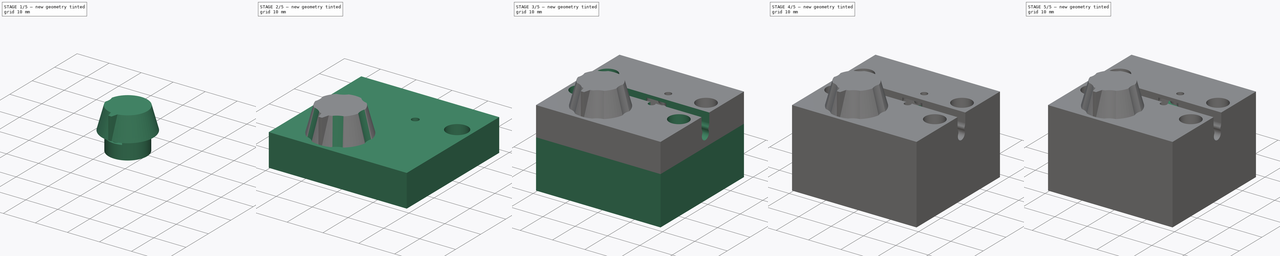
[diagram: build sequence overview — one tinted view per stage of 5, left to right]
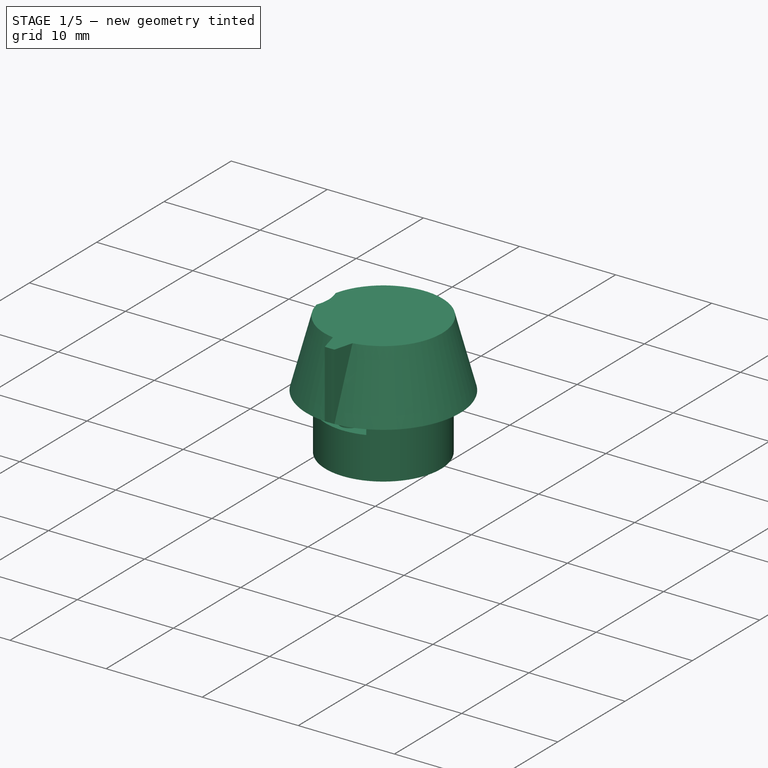
[diagram: stage 1 of 5 — iso view after this stage's code; geometry added in this stage tinted green]
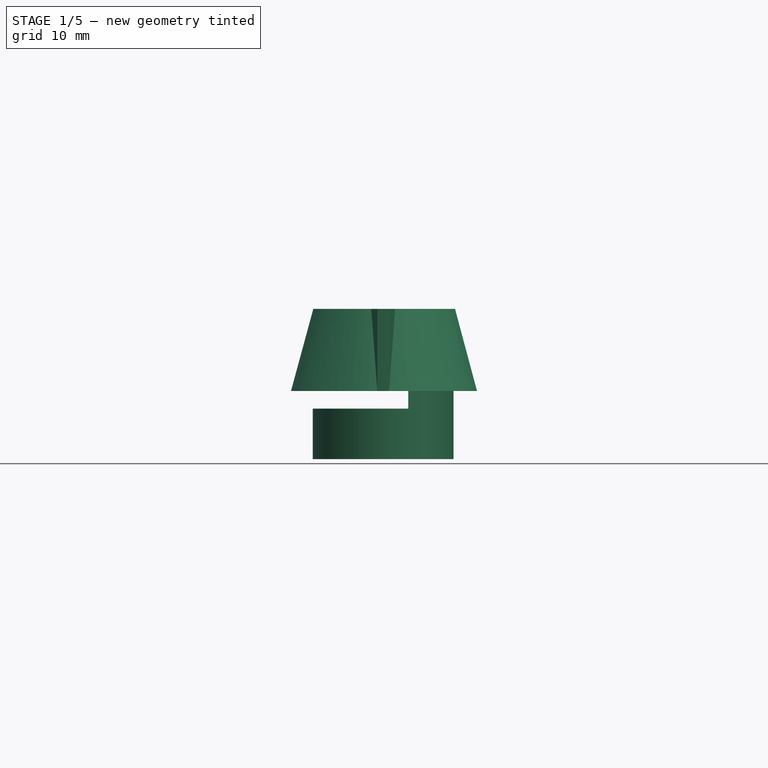
[diagram: stage 1 of 5 — front view after this stage's code; geometry added in this stage tinted green]
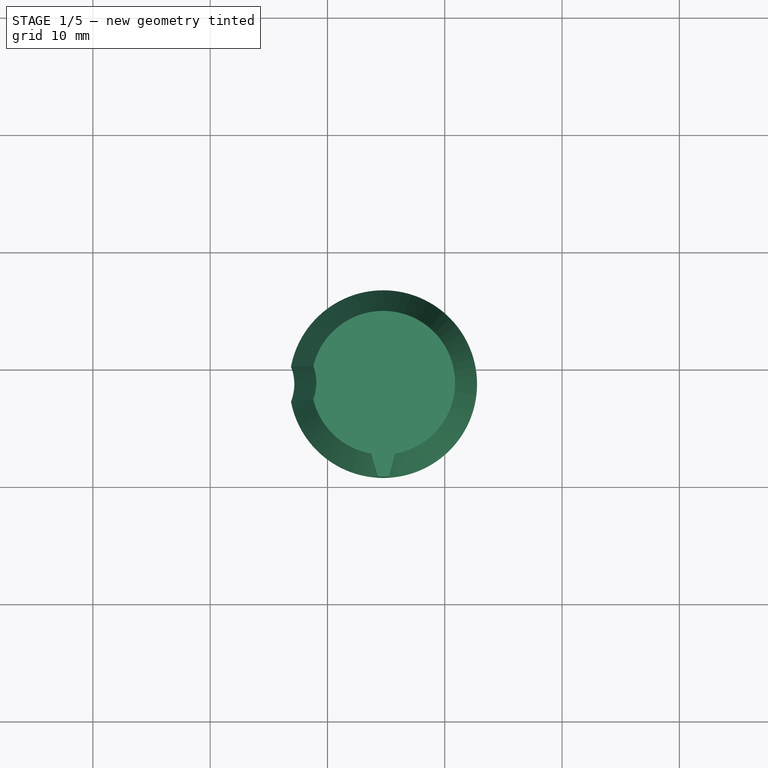
[diagram: stage 1 of 5 — top view after this stage's code; geometry added in this stage tinted green]
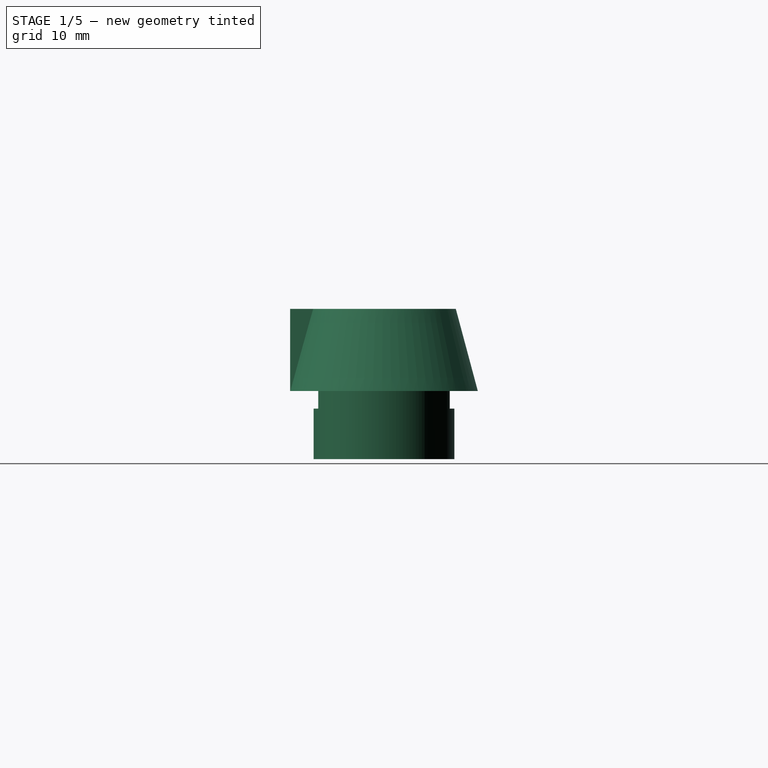
[diagram: stage 1 of 5 — right view after this stage's code; geometry added in this stage tinted green]
FCSTD DOCUMENT  (FreeCAD 1.1R44874 (Git))
Label: V0.2
License: CERN Open Hardware Licence Version 2 - Weakly Reciprocal
LicenseURL: https://ohwr.org/cernohl
objects: PartDesign::Pocket×27, Sketcher::SketchObject×19, PartDesign::SubShapeBinder×17, PartDesign::Pad×16, App::Point×12, PartDesign::Body×8, PartDesign::Mirrored×7, App::Part×4, PartDesign::MultiTransform×2, App::VarSet×1, App::DocumentObjectGroup×1, Part::DatumPlane×1, PartDesign::Revolution×1, PartDesign::PolarPattern×1
note: 215 computed .brp shape members not serialized (recipe doc carries the construction recipe); baked Part::Feature solids carry a one-line shape summary decoded from their .brp

FEATURE [PartDesign::Body] Body002  label="Upper Link"
  AllowCompound = false
  Group = -> [Binder008,Pad005,Pad006,Binder009,Pocket002]
  Origin = -> Origin010
  Placement = pos=(0,0,1.7) rot=(0,0,1;0rad)
  Tip = -> Pocket002
FEATURE [App::Part] Part001  label="Linkage001"
  Group = -> [Body001,Body002]
  Origin = -> Origin006
  Placement = pos=(0,0,-3.5) rot=(0,0,1;0rad)
FEATURE [App::Point] Origin013  label="Origin015"
  Role = Origin
FEATURE [App::DocumentObjectGroup] Group  label="Sketches"
  Group = -> [Sketch001,Sketch002,Sketch003,Sketch005,Sketch006,Sketch007,Sketch008,Sketch]
FEATURE [App::Point] Origin015  label="Origin017"
  Role = Origin
FEATURE [PartDesign::SubShapeBinder] Binder010
  BindCopyOnChange = 0
  BindMode = 0
  ClaimChildren = false
  Context = -> Part [Part002.Body003.Binder010.]
  Fuse = false
  MakeFace = true
  OffsetFill = false
  OffsetIntersection = false
  OffsetJoinType = 0
  OffsetOpenResult = false
  PartialLoad = false
  Refine = true
  Relative = true
  Support = -> [Sketch006]
  _Version = 2
FEATURE [Sketcher::SketchObject] Sketch009
  ArcFitTolerance = 1e-06
  AttachmentSupport = -> [Origin014]
  ExternalGeometry = -> [Binder010]
  ExternalTypes = [0,0,0,0,0,0,0,0,0]
  FullyConstrained = true
  MakeInternals = true
  MapMode = 5
  _ExternalGeoVersion = 1
FEATURE [PartDesign::Pad] Pad007
  Direction = (0,0,1)
  Length = 2.3
  Length2 = 10
  Profile = -> Sketch009 [Edge3,Edge4,Edge6]
  ReferenceAxis = -> Sketch009 [N_Axis]
  Refine = true
  SideType = 0
  Suppressed = false
  Type = 0
  Type2 = 0
FEATURE [PartDesign::Pad] Pad008
  BaseFeature = -> Pad007
  Direction = (0,0,1)
  Length = 2.8
  Length2 = 10
  Profile = -> Sketch009 [Edge3,Edge4,Edge1]
  ReferenceAxis = -> Sketch009 [N_Axis]
  Refine = true
  SideType = 1
  Suppressed = false
  Type = 0
  Type2 = 3
  UpToFace2 = -> Pad007 [Face3]
FEATURE [PartDesign::Pad] Pad009
  BaseFeature = -> Pad008
  Direction = (0,0,1)
  Length = 4.3
  Length2 = 10
  Profile = -> Sketch009 [Edge2,Edge3,Edge4]
  ReferenceAxis = -> Sketch009 [N_Axis]
  Refine = true
  SideType = 1
  Suppressed = false
  Type = 0
  Type2 = 3
  UpToFace2 = -> Pad008 [Face5]
FEATURE [PartDesign::Pad] Pad010
  BaseFeature = -> Pad009
  Direction = (0,0,1)
  Length = 6.2
  Length2 = 10
  Profile = -> Sketch009 [Edge5,Edge4]
  ReferenceAxis = -> Sketch009 [N_Axis]
  Refine = true
  SideType = 1
  Suppressed = false
  Type = 0
  Type2 = 3
  UpToFace2 = -> Pad009 [Face7]
FEATURE [PartDesign::Pocket] Pocket003
  BaseFeature = -> Pad010
  Direction = (0,0,-1)
  Length = 5
  Length2 = 5
  Profile = -> Sketch009 [Edge8,Edge7,Edge9]
  ReferenceAxis = -> Sketch009 [N_Axis]
  Refine = true
  SideType = 2
  Suppressed = false
  Type = 1
  Type2 = 0
FEATURE [PartDesign::Body] Body006  label="Upper Housing"
  AllowCompound = false
  Group = -> [Binder012,Binder014,Pad014,Pocket011,Pocket012,Binder018,Pocket013,Sketch013,Pocket014,Pocket015,Pocket017,Pocket018,Sketch014,Pocket019,MultiTransform001,Mirror002,Mirror003,Pocket020,Sketch016,Pocket022,Mirrored002,Pocket023]
  Origin = -> Origin022
  Tip = -> Pocket023
FEATURE [App::Part] Part003  label="Housing"
  Group = -> [Body005,Body006]
  Origin = -> Origin018
FEATURE [App::Point] Origin025  label="Origin031"
  Role = Origin
FEATURE [PartDesign::SubShapeBinder] Binder019
  BindCopyOnChange = 0
  BindMode = 0
  ClaimChildren = false
  Context = -> Part [Body007.Binder019.]
  Fuse = false
  MakeFace = true
  OffsetFill = false
  OffsetIntersection = false
  OffsetJoinType = 0
  OffsetOpenResult = false
  PartialLoad = false
  Refine = true
  Relative = true
  Support = -> [Sketch006]
  _Version = 2
FEATURE [Part::DatumPlane] DatumPlane
  AttachmentOffset = pos=(0,5.8,0) rot=(0,0,1;0rad)
  AttachmentSupport = -> [Binder019]
  MapMode = 7
  Placement = pos=(-4.25,-11.3,5.8) rot=(1,0,0;1.5708rad)
FEATURE [Sketcher::SketchObject] Sketch017
  ArcFitTolerance = 1e-06
  AttachmentSupport = -> [DatumPlane]
  ExternalGeometry = -> [Binder019]
  ExternalTypes = [0]
  FullyConstrained = true
  MakeInternals = true
  MapMode = 5
  Placement = pos=(-4.25,-11.3,5.8) rot=(1,0,0;1.5708rad)
  _ExternalGeoVersion = 1
  sketch-geometry (5):
    g0: LineSegment StartX=-9 StartY=0 StartZ=0 EndX=-7.12436 EndY=7 EndZ=0
    g1: LineSegment StartX=-7.12436 StartY=7 StartZ=0 EndX=-1 EndY=7 EndZ=0
    g2: LineSegment StartX=-1 StartY=7 StartZ=0 EndX=-1 EndY=0 EndZ=0
    g3: LineSegment StartX=-1 StartY=0 StartZ=0 EndX=-9 EndY=0 EndZ=0
    g4: GeomPoint X=-1 Y=-5.8 Z=0
  constraints (13):
    c: Coincident(g0,g1)
    c: Horizontal(g1)
    c: Coincident(g1,g2)
    c: Coincident(g2,g3)
    c: Coincident(g3,g0)
    c: DistanceY(g2,g2) = 7
    c: DistanceX(g3,g3) = 8
    c: Angle(g3,g0) = 1.309
    c: Vertical(g2)
    c: Horizontal(g3)
    c: PointOnObject(g0,g-1)
    c: Symmetric(g-3,g-3,g4)
    c: Vertical(g2,g4)
FEATURE [PartDesign::Revolution] Revolution
  Angle = 360
  Angle2 = 0
  Axis = (0,-2e-16,-1)
  Base = (-5.25,-11.3,12.8)
  FuseOrder = 0
  Placement = pos=(-4.25,-11.3,5.8) rot=(1,0,0;1.5708rad)
  Profile = -> Sketch017
  ReferenceAxis = -> Sketch017 [Edge3]
  Refine = true
  Suppressed = false
  Type = 0
FEATURE [PartDesign::Pocket] Pocket024
  BaseFeature = -> Revolution
  Direction = (0,0,-1)
  Length = 11
  Length2 = 5
  Placement = pos=(-4.25,-11.3,5.8) rot=(1,0,0;1.5708rad)
  Profile = -> Binder019 [Edge1,Edge12]
  Refine = true
  Reversed = true
  SideType = 0
  Suppressed = false
  Type = 0
  Type2 = 0
FEATURE [Sketcher::SketchObject] Sketch018
  ArcFitTolerance = 1e-06
  AttachmentSupport = -> [Pocket024]
  ExternalGeometry = -> [Pocket024]
  ExternalTypes = [0]
  FullyConstrained = true
  MakeInternals = true
  MapMode = 5
  Placement = pos=(-4.25,-11.3,5.8) rot=(1,0,0;3.14159rad)
  _ExternalGeoVersion = 1
  sketch-geometry (4):
    g0: ArcOfCircle CenterX=-1 CenterY=1.8e-15 CenterZ=0 NormalX=0 NormalY=0 NormalZ=1 AngleXU=0 Radius=8 StartAngle=1.50826 EndAngle=1.63334
    g1: LineSegment StartX=-1.5 StartY=7.98436 StartZ=0 EndX=-2.29966 EndY=5 EndZ=0
    g2: LineSegment StartX=-2.29966 StartY=5 StartZ=0 EndX=0.299657 EndY=5 EndZ=0
    g3: LineSegment StartX=0.299657 StartY=5 StartZ=0 EndX=-0.5 EndY=7.98436 EndZ=0
  constraints (12):
    c: Coincident(g0,g-3)
    c: PointOnObject(g0,g-3)
    c: Coincident(g0,g1)
    c: Coincident(g1,g2)
    c: Horizontal(g2)
    c: Coincident(g2,g3)
    c: Coincident(g3,g0)
    c: Horizontal(g0,g0)
    c: DistanceY(g-1,g2) = 5
    c: Distance(g0,g0) = 1
    c: Equal(g3,g1)
    c: Angle(g1,g3) = 0.523599
FEATURE [PartDesign::Pad] Pad015
  BaseFeature = -> Pocket024
  Direction = (0,0,-1)
  Length = 10
  Length2 = 10
  Placement = pos=(-4.25,-11.3,5.8) rot=(1,0,0;1.5708rad)
  Profile = -> Sketch018
  ReferenceAxis = -> Sketch018 [N_Axis]
  Refine = true
  Reversed = true
  SideType = 0
  Suppressed = false
  Type = 3
  Type2 = 0
  UpToFace = -> Pocket024 [Face3]
FEATURE [Sketcher::SketchObject] Sketch019
  ArcFitTolerance = 1e-06
  AttachmentSupport = -> [Pad015]
  ExternalGeometry = -> [Pad015]
  ExternalTypes = [0]
  FullyConstrained = true
  MakeInternals = true
  MapMode = 5
  Placement = pos=(-4.25,-11.3,12.8) rot=(0,0,1;3.14159rad)
  _ExternalGeoVersion = 1
  sketch-geometry (1):
    g0: Circle CenterX=10.7 CenterY=0 CenterZ=0 NormalX=0 NormalY=0 NormalZ=1 AngleXU=0 Radius=4
  constraints (3):
    c: PointOnObject(g0,g-1)
    c: Distance(g0,g-2) = 6.7
    c: Diameter(g0) = 8
FEATURE [PartDesign::Pocket] Pocket025
  BaseFeature = -> Pad015
  Direction = (-0.258819,-5e-16,-0.965926)
  Length = 5
  Length2 = 5
  Placement = pos=(-4.25,-11.3,5.8) rot=(1,0,0;1.5708rad)
  Profile = -> Sketch019
  ReferenceAxis = -> Pad015 [Edge1]
  Refine = true
  SideType = 0
  Suppressed = false
  Type = 1
  Type2 = 0
FEATURE [PartDesign::Body] Body007  label="Knob"
  AllowCompound = false
  Group = -> [Binder019,DatumPlane,Sketch017,Revolution,Pocket024,Sketch018,Pad015,Sketch019,Pocket025,PolarPattern]
  Origin = -> Origin024
  Tip = -> PolarPattern
FEATURE [Sketcher::SketchObject] Sketch020
  ArcFitTolerance = 1e-06
  AttachmentSupport = -> [Pocket003]
  ExternalGeometry = -> [Pocket003]
  ExternalTypes = [0,0]
  FullyConstrained = true
  MakeInternals = true
  MapMode = 5
  Placement = pos=(0,0,2.3) rot=(1,0,0;3.14159rad)
  _ExternalGeoVersion = 1
  sketch-geometry (4):
    g0: ArcOfCircle CenterX=-5.25 CenterY=11.3 CenterZ=0 NormalX=0 NormalY=0 NormalZ=1 AngleXU=0 Radius=2.6 StartAngle=1.09107 EndAngle=2.05052
    g1: ArcOfCircle CenterX=-5.25 CenterY=11.3 CenterZ=0 NormalX=0 NormalY=0 NormalZ=1 AngleXU=0 Radius=2.6 StartAngle=4.23266 EndAngle=5.19212
    g2: LineSegment StartX=-6.45 StartY=13.6065 StartZ=0 EndX=-6.45 EndY=8.99349 EndZ=0
    g3: LineSegment StartX=-4.05 StartY=13.6065 StartZ=0 EndX=-4.05 EndY=8.99349 EndZ=0
  constraints (12):
    c: Coincident(g0,g-4)
    c: PointOnObject(g0,g-4)
    c: Coincident(g1,g0)
    c: PointOnObject(g1,g-4)
    c: Coincident(g2,g0)
    c: Coincident(g2,g1)
    c: Vertical(g2)
    c: Coincident(g3,g0)
    c: Coincident(g3,g1)
    c: Vertical(g3)
    c: Horizontal(g1,g1)
    c: Tangent(g2,g-3)
FEATURE [PartDesign::Pocket] Pocket026
  BaseFeature = -> Pocket003
  Direction = (0,0,1)
  Length = 0.1
  Length2 = 5
  Profile = -> Sketch020
  ReferenceAxis = -> Sketch020 [N_Axis]
  Refine = true
  SideType = 0
  Suppressed = false
  Type = 0
  Type2 = 0
FEATURE [PartDesign::Body] Body003  label="Lower Crank"
  AllowCompound = false
  Group = -> [Binder010,Sketch009,Pad007,Pad008,Pad009,Pad010,Pocket003,Sketch020,Pocket026]
  Origin = -> Origin014
  Placement = pos=(0,0,-6.2) rot=(0,0,1;0rad)
  Tip = -> Pocket026
FEATURE [App::Part] Part002  label="Crank"
  Group = -> [Body003,Body004]
  Origin = -> Origin012
  Placement = pos=(0,0,-3.5) rot=(0,0,1;0rad)
FEATURE [App::Part] Part  label="V0.2"
  Group = -> [VarSet,Group,Body,Part001,Part002,Part003,Sketch001,Sketch003,Sketch006,Sketch,Sketch008,Sketch002,Sketch007,Sketch005,Body007]
  Origin = -> Origin
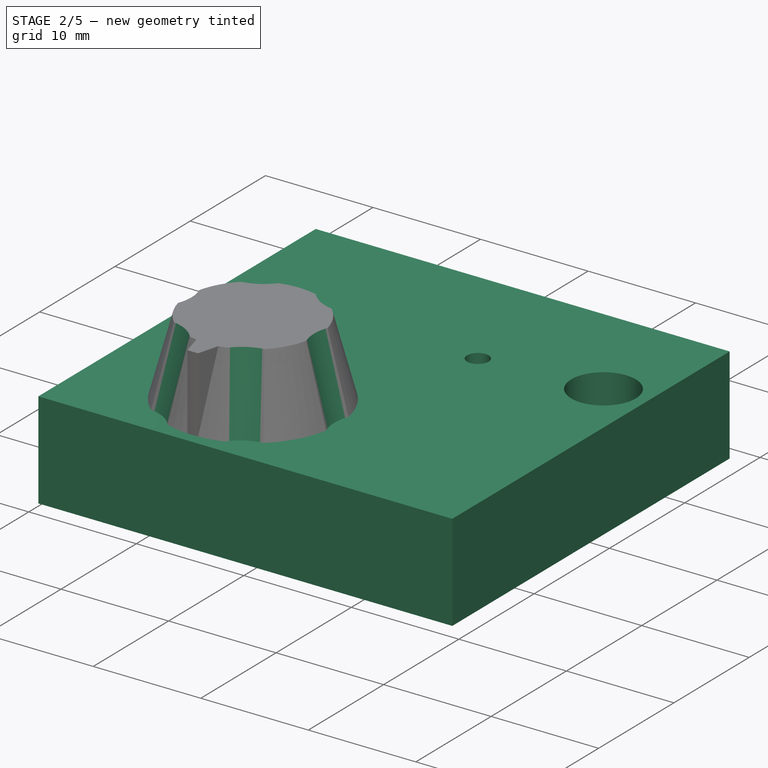
[diagram: stage 2 of 5 — iso view after this stage's code; geometry added in this stage tinted green]
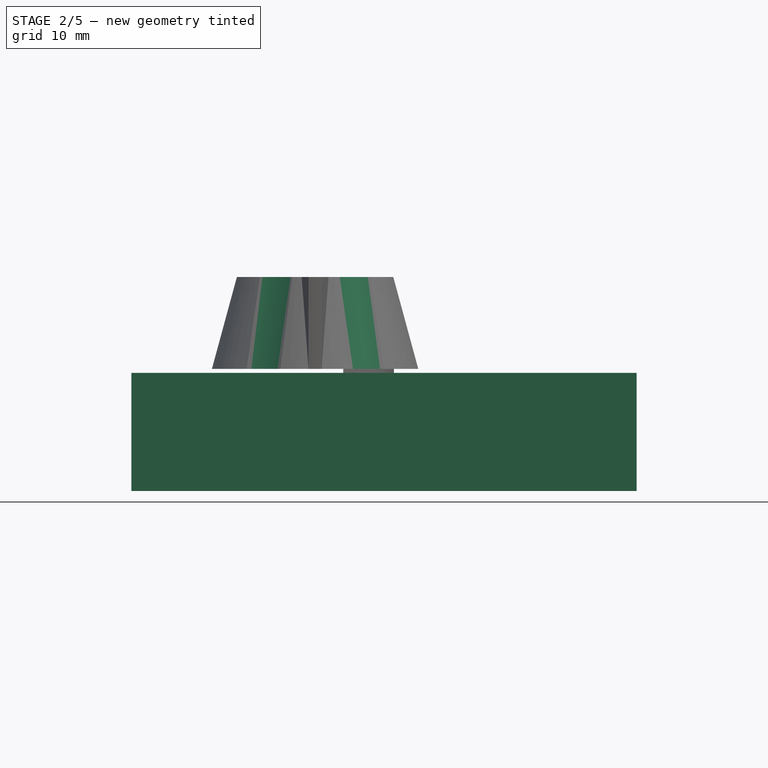
[diagram: stage 2 of 5 — front view after this stage's code; geometry added in this stage tinted green]
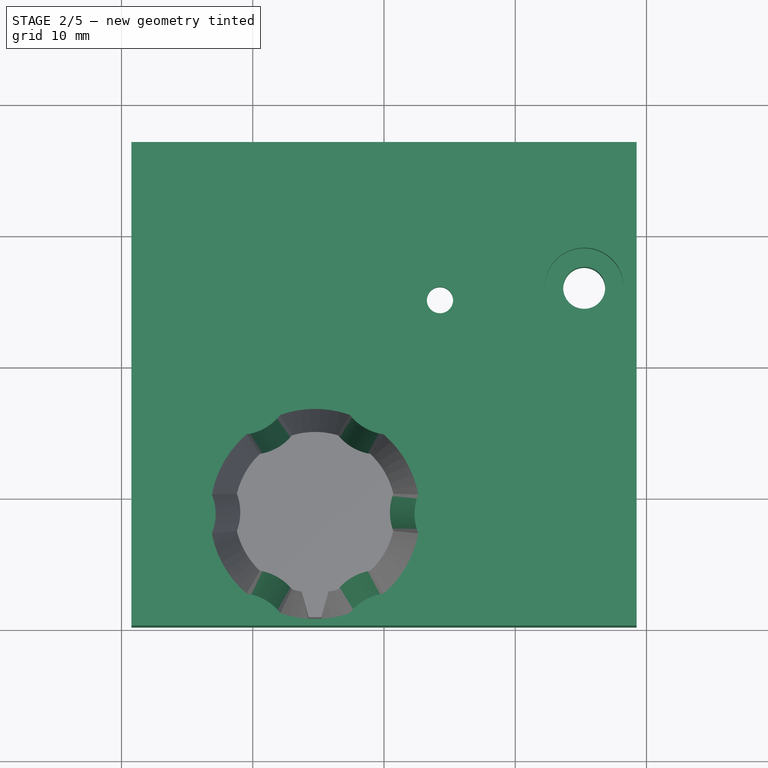
[diagram: stage 2 of 5 — top view after this stage's code; geometry added in this stage tinted green]
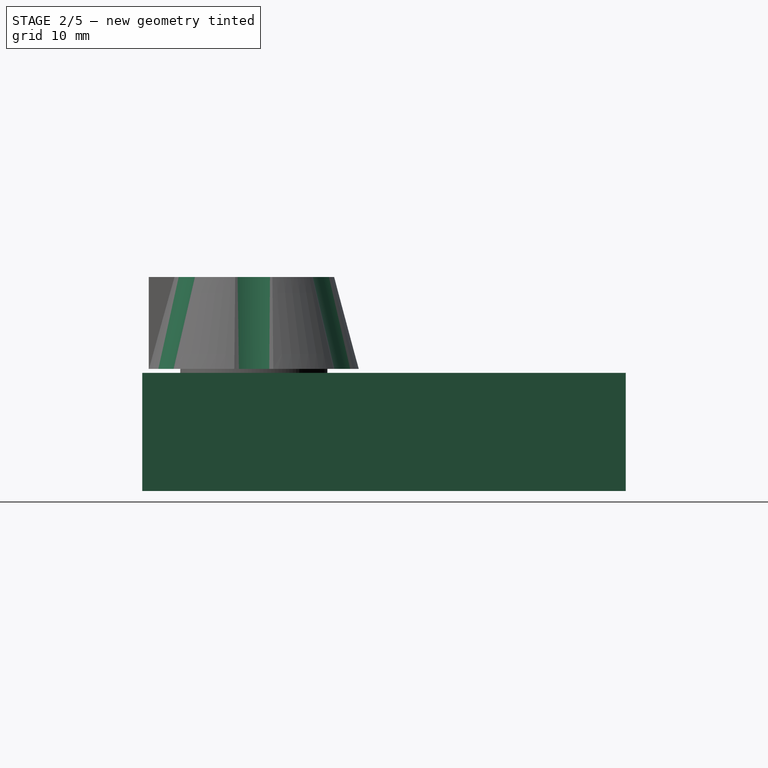
[diagram: stage 2 of 5 — right view after this stage's code; geometry added in this stage tinted green]
FEATURE [PartDesign::Pad] Pad014
  Direction = (0,0,1)
  Length = 5.5
  Length2 = 3.5
  Profile = -> Binder012 [Edge26,Edge23,Edge24,Edge25]
  Refine = true
  SideType = 1
  Suppressed = false
  Type = 0
  Type2 = 0
FEATURE [PartDesign::Pocket] Pocket011
  BaseFeature = -> Pad014
  Direction = (0,0,-1)
  Length = 3.3
  Length2 = 5
  Profile = -> Binder014
  Refine = true
  Reversed = true
  SideType = 1
  Suppressed = false
  Type = 0
  Type2 = 1
FEATURE [PartDesign::Pocket] Pocket012
  BaseFeature = -> Pocket011
  Direction = (0,0,-1)
  Length = 4.5
  Length2 = 5
  Profile = -> Binder014 [Edge10,Edge11,Edge13,Edge12]
  Refine = true
  Reversed = true
  SideType = 1
  Suppressed = false
  Type = 0
  Type2 = 1
FEATURE [PartDesign::SubShapeBinder] Binder018
  BindCopyOnChange = 0
  BindMode = 0
  ClaimChildren = false
  Context = -> Part [Part003.Body006.Binder018.]
  Fuse = false
  MakeFace = true
  OffsetFill = false
  OffsetIntersection = false
  OffsetJoinType = 0
  OffsetOpenResult = false
  PartialLoad = false
  Refine = true
  Relative = true
  Support = -> [Sketch007]
  _Version = 2
FEATURE [PartDesign::Pocket] Pocket013
  BaseFeature = -> Pocket012
  Direction = (0,0,-1)
  Length = 4
  Length2 = -1
  Profile = -> Binder018
  Refine = true
  SideType = 1
  Suppressed = false
  Type = 1
  Type2 = 0
FEATURE [Sketcher::SketchObject] Sketch013
  ArcFitTolerance = 1e-06
  AttachmentSupport = -> [Origin022]
  ExternalGeometry = -> [Binder018]
  ExternalTypes = [0]
  FullyConstrained = true
  MakeInternals = true
  MapMode = 5
  _ExternalGeoVersion = 1
  sketch-geometry (1):
    g0: Circle CenterX=-5.25 CenterY=-11.3 CenterZ=0 NormalX=0 NormalY=0 NormalZ=1 AngleXU=0 Radius=7
  constraints (2):
    c: Coincident(g0,g-3)
    c: PointOnObject(g-3,g0)
FEATURE [PartDesign::Pocket] Pocket014
  BaseFeature = -> Pocket013
  Direction = (0,0,-1)
  Length = 4
  Length2 = 4
  Profile = -> Sketch013
  ReferenceAxis = -> Sketch013 [N_Axis]
  Refine = true
  SideType = 1
  Suppressed = false
  Type = 1
  Type2 = 0
FEATURE [PartDesign::Pocket] Pocket015
  BaseFeature = -> Pocket014
  Direction = (0,0,-1)
  Length = 5
  Length2 = 5
  Profile = -> Binder012 [Edge39,Edge12]
  Refine = true
  SideType = 2
  Suppressed = false
  Type = 1
  Type2 = 0
FEATURE [PartDesign::Pocket] Pocket017
  BaseFeature = -> Pocket015
  Direction = (0,0,-1)
  Length = 5
  Length2 = 5
  Profile = -> Binder012 [Edge29]
  Refine = true
  SideType = 2
  Suppressed = false
  Type = 1
  Type2 = 0
FEATURE [PartDesign::Pocket] Pocket018
  BaseFeature = -> Pocket017
  Direction = (0,0,-1)
  Length = 6
  Length2 = -2
  Profile = -> Binder012 [Edge30]
  Refine = true
  Reversed = true
  SideType = 1
  Suppressed = false
  Type = 1
  Type2 = 0
FEATURE [Sketcher::SketchObject] Sketch014
  ArcFitTolerance = 1e-06
  AttachmentSupport = -> [Pocket018]
  ExternalGeometry = -> [Pocket018]
  ExternalTypes = [0]
  FullyConstrained = true
  MakeInternals = true
  MapMode = 5
  Placement = pos=(0,0,2) rot=(0,0,1;0rad)
  _ExternalGeoVersion = 1
  sketch-geometry (4):
    g0: ArcOfCircle CenterX=15.25 CenterY=6 CenterZ=0 NormalX=0 NormalY=0 NormalZ=1 AngleXU=0 Radius=3 StartAngle=1.0472 EndAngle=2.0944
    g1: ArcOfCircle CenterX=15.25 CenterY=6 CenterZ=0 NormalX=0 NormalY=0 NormalZ=1 AngleXU=0 Radius=3 StartAngle=4.18879 EndAngle=5.23599
    g2: LineSegment StartX=13.75 StartY=8.59808 StartZ=0 EndX=13.75 EndY=3.40192 EndZ=0
    g3: LineSegment StartX=16.75 StartY=8.59808 StartZ=0 EndX=16.75 EndY=3.40192 EndZ=0
  constraints (12):
    c: Coincident(g0,g-3)
    c: PointOnObject(g0,g-3)
    c: Coincident(g1,g0)
    c: PointOnObject(g1,g-3)
    c: Coincident(g2,g0)
    c: Coincident(g3,g0)
    c: Coincident(g3,g1)
    c: Coincident(g2,g1)
    c: Vertical(g2)
    c: Vertical(g3)
    c: Equal(g3,g2)
    c: Distance(g2,g3) = 3
FEATURE [PartDesign::Pocket] Pocket019
  BaseFeature = -> Pocket018
  Direction = (0,0,-1)
  Length = 0.2
  Length2 = 5
  Profile = -> Sketch014
  ReferenceAxis = -> Sketch014 [N_Axis]
  Refine = true
  SideType = 0
  Suppressed = false
  Type = 0
  Type2 = 0
FEATURE [PartDesign::PolarPattern] PolarPattern
  Angle = 360
  Axis = -> Sketch017 [Edge3]
  BaseFeature = -> Pocket025
  Mode = 0
  Occurrences = 6
  Offset = 120
  Originals = -> [Pocket025]
  Placement = pos=(-4.25,-11.3,5.8) rot=(1,0,0;1.5708rad)
  Refine = true
  SpacingPattern = [0]
  Spacings = [-1,-1,-1,-1,-1]
  Suppressed = false
  TransformMode = 0
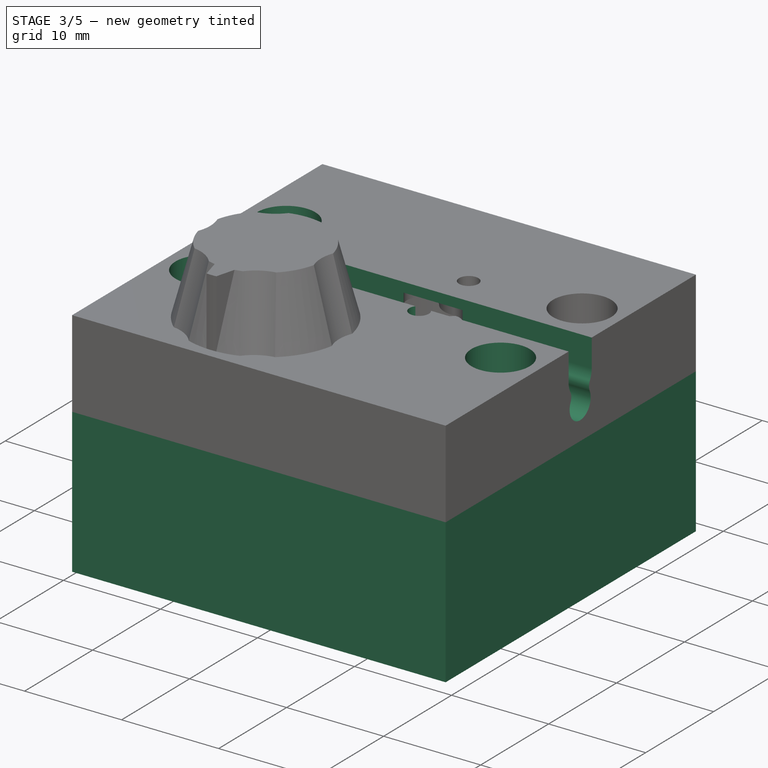
[diagram: stage 3 of 5 — iso view after this stage's code; geometry added in this stage tinted green]
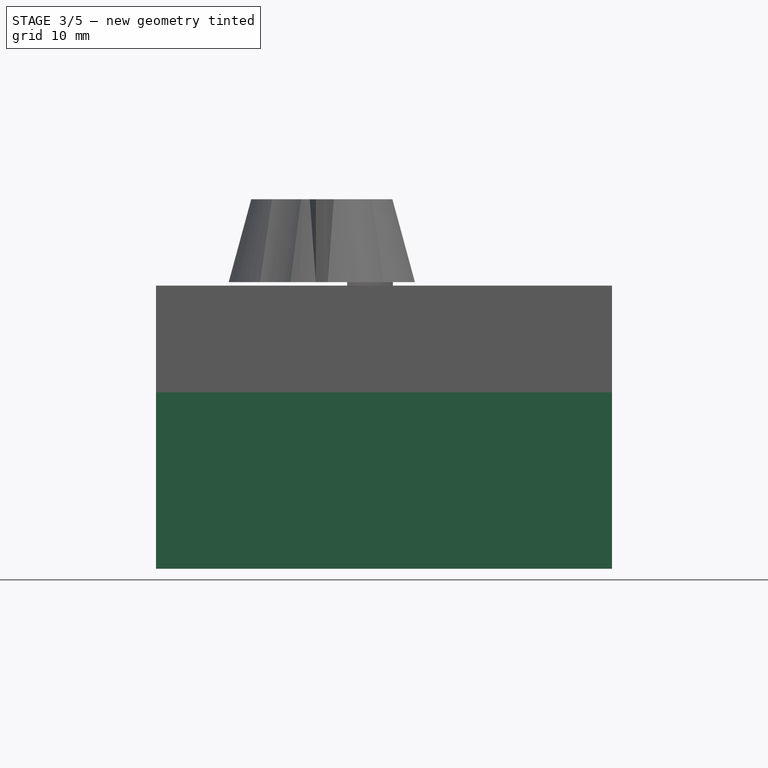
[diagram: stage 3 of 5 — front view after this stage's code; geometry added in this stage tinted green]
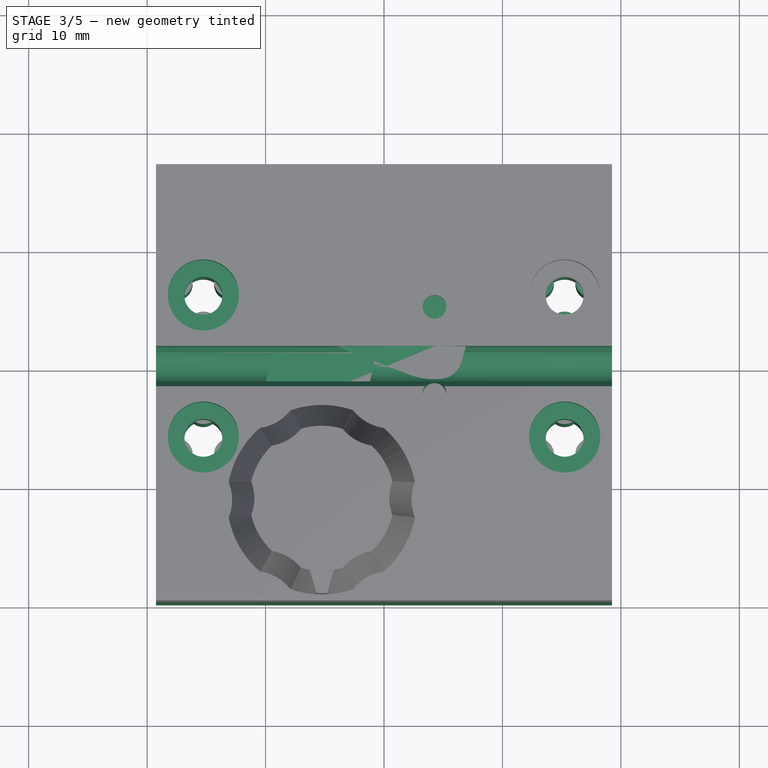
[diagram: stage 3 of 5 — top view after this stage's code; geometry added in this stage tinted green]
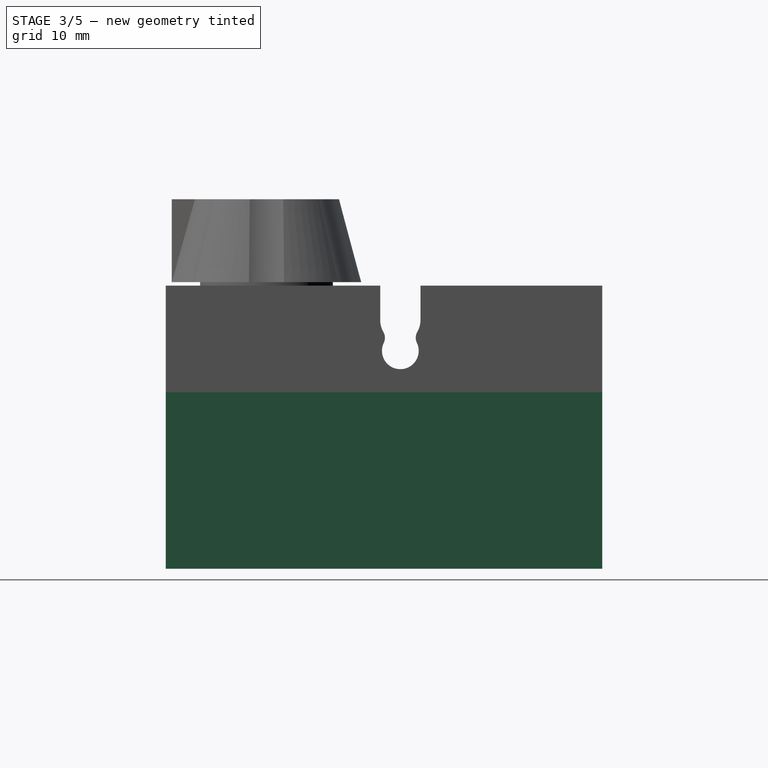
[diagram: stage 3 of 5 — right view after this stage's code; geometry added in this stage tinted green]
FEATURE [PartDesign::Body] Body004  label="Upper Crank"
  AllowCompound = false
  Group = -> [Binder011,Sketch010,Pad011,Pad012,Pocket004]
  Origin = -> Origin016
  Tip = -> Pocket004
FEATURE [App::Point] Origin019  label="Origin023"
  Role = Origin
FEATURE [App::Point] Origin021  label="Origin026"
  Role = Origin
FEATURE [App::Point] Origin023  label="Origin028"
  Role = Origin
FEATURE [PartDesign::SubShapeBinder] Binder012
  BindCopyOnChange = 0
  BindMode = 0
  ClaimChildren = false
  Context = -> Part [Part003.Body006.Binder012.]
  Fuse = false
  MakeFace = true
  OffsetFill = false
  OffsetIntersection = false
  OffsetJoinType = 0
  OffsetOpenResult = false
  PartialLoad = false
  Refine = true
  Relative = true
  Support = -> [Sketch]
  _Version = 2
FEATURE [PartDesign::SubShapeBinder] Binder014
  BindCopyOnChange = 0
  BindMode = 0
  ClaimChildren = false
  Context = -> Part [Part003.Body006.Binder014.]
  Fuse = false
  MakeFace = true
  OffsetFill = false
  OffsetIntersection = false
  OffsetJoinType = 0
  OffsetOpenResult = false
  PartialLoad = false
  Refine = true
  Relative = true
  Support = -> [Sketch008]
  _Version = 2
FEATURE [PartDesign::SubShapeBinder] Binder015
  BindCopyOnChange = 0
  BindMode = 0
  ClaimChildren = false
  Context = -> Part [Part003.Body005.Binder015.]
  Fuse = false
  MakeFace = true
  OffsetFill = false
  OffsetIntersection = false
  OffsetJoinType = 0
  OffsetOpenResult = false
  PartialLoad = false
  Refine = true
  Relative = true
  Support = -> [Sketch]
  _Version = 2
FEATURE [PartDesign::SubShapeBinder] Binder016
  BindCopyOnChange = 0
  BindMode = 0
  ClaimChildren = false
  Context = -> Part [Part003.Body005.Binder016.]
  Fuse = false
  MakeFace = true
  OffsetFill = false
  OffsetIntersection = false
  OffsetJoinType = 0
  OffsetOpenResult = false
  PartialLoad = false
  Refine = true
  Relative = true
  Support = -> [Sketch007]
  _Version = 2
FEATURE [PartDesign::SubShapeBinder] Binder017
  BindCopyOnChange = 0
  BindMode = 0
  ClaimChildren = false
  Context = -> Part [Part003.Body005.Binder017.]
  Fuse = false
  MakeFace = true
  OffsetFill = false
  OffsetIntersection = false
  OffsetJoinType = 0
  OffsetOpenResult = false
  PartialLoad = false
  Refine = true
  Relative = true
  Support = -> [Sketch008]
  _Version = 2
FEATURE [PartDesign::Pad] Pad013
  Direction = (0,0,1)
  Length = 18.4
  Length2 = -3.5
  Profile = -> Binder015 [Edge23,Edge26,Edge25,Edge24,Edge36,Edge37,Edge38,Edge35]
  Refine = true
  Reversed = true
  SideType = 1
  Suppressed = false
  Type = 0
  Type2 = 0
FEATURE [Sketcher::SketchObject] Sketch011
  ArcFitTolerance = 1e-06
  AttachmentSupport = -> [Pad013]
  ExternalGeometry = -> [Binder015]
  ExternalTypes = [0]
  FullyConstrained = true
  MakeInternals = true
  MapMode = 5
  Placement = pos=(0,0,-3.5) rot=(0,0,1;0rad)
  _ExternalGeoVersion = 1
  sketch-geometry (10):
    g0: Circle [constr] CenterX=-13.75 CenterY=-11.3 CenterZ=0 NormalX=0 NormalY=0 NormalZ=1 AngleXU=0 Radius=0.8
    g1: ArcOfCircle CenterX=-13.75 CenterY=-9.5 CenterZ=0 NormalX=0 NormalY=0 NormalZ=1 AngleXU=0 Radius=1 StartAngle=4.08646 EndAngle=5.33832
    g2: ArcOfCircle CenterX=-15.3088 CenterY=-12.2 CenterZ=0 NormalX=0 NormalY=0 NormalZ=1 AngleXU=0 Radius=1 StartAngle=6.18085 EndAngle=7.43272
    g3: ArcOfCircle CenterX=-12.1912 CenterY=-12.2 CenterZ=0 NormalX=0 NormalY=0 NormalZ=1 AngleXU=0 Radius=1 StartAngle=1.99206 EndAngle=3.24393
    g4: ArcOfCircle CenterX=-13.75 CenterY=-11.3 CenterZ=0 NormalX=0 NormalY=0 NormalZ=1 AngleXU=0 Radius=1.15 StartAngle=0.010933 EndAngle=1.03626
    g5: ArcOfCircle CenterX=-13.75 CenterY=-11.3 CenterZ=0 NormalX=0 NormalY=0 NormalZ=1 AngleXU=0 Radius=1.15 StartAngle=4.19972 EndAngle=5.22505
    g6: ArcOfCircle CenterX=-13.75 CenterY=-11.3 CenterZ=0 NormalX=0 NormalY=0 NormalZ=1 AngleXU=0 Radius=1.15 StartAngle=2.10533 EndAngle=3.13066
    g7: LineSegment [constr] StartX=-13.75 StartY=-9.5 StartZ=0 EndX=-15.3088 EndY=-12.2 EndZ=0
    g8: LineSegment [constr] StartX=-15.3088 StartY=-12.2 StartZ=0 EndX=-12.1912 EndY=-12.2 EndZ=0
    g9: LineSegment [constr] StartX=-12.1912 StartY=-12.2 StartZ=0 EndX=-13.75 EndY=-9.5 EndZ=0
  constraints (32):
    c: Diameter(g0) = 1.6
    c: Coincident(g0,g-3)
    c: Coincident(g4,g1)
    c: Coincident(g4,g3)
    c: Coincident(g5,g2)
    c: Coincident(g5,g3)
    c: Coincident(g6,g1)
    c: Coincident(g6,g2)
    c: Equal(g1,g2)
    c: Equal(g2,g3)
    c: Equal(g6,g4)
    c: Equal(g5,g4)
    c: PointOnObject(g1,g-3)
    c: PointOnObject(g3,g-3)
    c: PointOnObject(g1,g-3)
    c: PointOnObject(g2,g-3)
    c: PointOnObject(g3,g-3)
    c: PointOnObject(g2,g-3)
    c: Equal(g5,g-3)
    c: Tangent(g0,g2)
    c: Tangent(g3,g0)
    c: Tangent(g1,g0)
    c: Radius(g1) = 1
    c: Coincident(g7,g1)
    c: Coincident(g7,g2)
    c: Coincident(g8,g2)
    c: Coincident(g8,g3)
    c: Coincident(g9,g3)
    c: Coincident(g9,g1)
    c: Equal(g9,g7)
    c: Equal(g7,g8)
    c: Horizontal(g8)
FEATURE [PartDesign::Pocket] Pocket005  label="Servo Mounting Holes"
  BaseFeature = -> Pad013
  Direction = (0,0,-1)
  Length = 10
  Length2 = 5
  Profile = -> Sketch011
  ReferenceAxis = -> Sketch011 [N_Axis]
  Refine = true
  SideType = 0
  Suppressed = false
  Type = 1
  Type2 = 0
FEATURE [PartDesign::Mirrored] Mirrored001
  BaseFeature = -> Pocket005
  MirrorPlane = -> Sketch011 [V_Axis]
  Originals = -> [Pocket005]
  Refine = true
  Suppressed = false
  TransformMode = 0
FEATURE [Sketcher::SketchObject] Sketch012
  ArcFitTolerance = 1e-06
  AttachmentSupport = -> [Mirrored001]
  ExternalGeometry = -> [Binder015]
  ExternalTypes = [0]
  FullyConstrained = true
  MakeInternals = true
  MapMode = 5
  Placement = pos=(0,0,-18.4) rot=(1,0,0;3.14159rad)
  _ExternalGeoVersion = 1
  sketch-geometry (10):
    g0: LineSegment [constr] StartX=-13.0416 StartY=-7.275 StartZ=0 EndX=-15.25 EndY=-3.45 EndZ=0
    g1: LineSegment [constr] StartX=-15.25 StartY=-3.45 StartZ=0 EndX=-17.4584 EndY=-7.275 EndZ=0
    g2: LineSegment [constr] StartX=-17.4584 StartY=-7.275 StartZ=0 EndX=-13.0416 EndY=-7.275 EndZ=0
    g3: Circle [constr] CenterX=-15.25 CenterY=-6 CenterZ=0 NormalX=0 NormalY=0 NormalZ=1 AngleXU=0 Radius=2.55
    g4: ArcOfCircle CenterX=-17.4584 CenterY=-7.275 CenterZ=0 NormalX=0 NormalY=0 NormalZ=1 AngleXU=0 Radius=1.3 StartAngle=6.16291 EndAngle=7.45066
    g5: ArcOfCircle CenterX=-13.0416 CenterY=-7.275 CenterZ=0 NormalX=0 NormalY=0 NormalZ=1 AngleXU=0 Radius=1.3 StartAngle=1.97412 EndAngle=3.26187
    g6: ArcOfCircle CenterX=-15.25 CenterY=-3.45 CenterZ=0 NormalX=0 NormalY=0 NormalZ=1 AngleXU=0 Radius=1.3 StartAngle=4.06851 EndAngle=5.35627
    g7: ArcOfCircle CenterX=-15.25 CenterY=-6 CenterZ=0 NormalX=0 NormalY=0 NormalZ=1 AngleXU=0 Radius=1.7 StartAngle=2.04773 EndAngle=3.18826
    g8: ArcOfCircle CenterX=-15.25 CenterY=-6 CenterZ=0 NormalX=0 NormalY=0 NormalZ=1 AngleXU=0 Radius=1.7 StartAngle=6.23652 EndAngle=7.37705
    g9: ArcOfCircle CenterX=-15.25 CenterY=-6 CenterZ=0 NormalX=0 NormalY=0 NormalZ=1 AngleXU=0 Radius=1.7 StartAngle=4.14212 EndAngle=5.28266
  constraints (29):
    c: Coincident(g0,g1)
    c: Coincident(g1,g2)
    c: Coincident(g2,g0)
    c: Equal(g0,g1)
    c: Equal(g0,g2)
    c: PointOnObject(g0,g3)
    c: PointOnObject(g1,g3)
    c: PointOnObject(g2,g3)
    c: Coincident(g4,g1)
    c: Coincident(g5,g0)
    c: Coincident(g6,g0)
    c: Coincident(g7,g3)
    c: Coincident(g7,g6)
    c: Coincident(g8,g3)
    c: Coincident(g8,g6)
    c: Coincident(g9,g3)
    c: Coincident(g9,g4)
    c: Equal(g4,g5)
    c: Equal(g4,g6)
    c: Equal(g7,g8)
    c: Equal(g8,g9)
    c: Coincident(g5,g9)
    c: Coincident(g8,g5)
    c: Coincident(g7,g4)
    c: Coincident(g3,g-3)
    c: Radius(g9) = 1.7
    c: Distance(g3,g6) = 1.25
    c: Horizontal(g2)
    c: Radius(g5) = 1.3
FEATURE [PartDesign::Pocket] Pocket006  label="Casing Mounting Holes"
  BaseFeature = -> Mirrored001
  Direction = (0,0,1)
  Length = 8
  Length2 = 5
  Profile = -> Sketch012
  ReferenceAxis = -> Sketch012 [N_Axis]
  Refine = true
  SideType = 0
  Suppressed = false
  Type = 1
  Type2 = 0
FEATURE [PartDesign::Mirrored] Mirror
  MirrorPlane = -> Sketch012 [V_Axis]
  Refine = true
  Suppressed = false
  TransformMode = 0
FEATURE [PartDesign::Mirrored] Mirror001
  MirrorPlane = -> Sketch012 [H_Axis]
  Refine = true
  Suppressed = false
  TransformMode = 0
FEATURE [PartDesign::MultiTransform] MultiTransform
  BaseFeature = -> Pocket006
  Originals = -> [Pocket006]
  Refine = true
  Suppressed = false
  TransformMode = 0
  Transformations = -> [Mirror,Mirror001]
FEATURE [PartDesign::Mirrored] Mirror002
  MirrorPlane = -> YZ_Plane011
  Refine = true
  Suppressed = false
  TransformMode = 0
FEATURE [PartDesign::Mirrored] Mirror003
  MirrorPlane = -> XZ_Plane011
  Refine = true
  Suppressed = false
  TransformMode = 0
FEATURE [PartDesign::MultiTransform] MultiTransform001
  BaseFeature = -> Pocket019
  Originals = -> [Pocket017,Pocket018,Pocket019]
  Refine = true
  Suppressed = false
  TransformMode = 0
  Transformations = -> [Mirror002,Mirror003]
FEATURE [PartDesign::Pocket] Pocket020
  BaseFeature = -> MultiTransform001
  Direction = (0,0,-1)
  Length = 5
  Length2 = 5
  Profile = -> Binder012 [Edge16]
  Refine = true
  SideType = 2
  Suppressed = false
  Type = 1
  Type2 = 0
FEATURE [PartDesign::Body] Body005  label="Lower Housing"
  AllowCompound = false
  Group = -> [Binder015,Binder016,Binder017,Pad013,Sketch011,Pocket005,Mirrored001,Sketch012,Pocket006,MultiTransform,Mirror,Mirror001,Pocket007,Pocket008,Pocket009,Pocket010,Pocket016,Pocket021]
  Origin = -> Origin020
  Tip = -> Pocket021
FEATURE [Sketcher::SketchObject] Sketch016
  ArcFitTolerance = 1e-06
  AttachmentSupport = -> [Origin022]
  ExternalTypes = [0]
  FullyConstrained = true
  MakeInternals = true
  MapMode = 5
  Placement = pos=(0,0,0) rot=(0.57735,0.57735,0.57735;2.0944rad)
  _ExternalGeoVersion = 1
  sketch-geometry (6):
    g0: LineSegment StartX=0 StartY=5.5 StartZ=0 EndX=1.7 EndY=5.5 EndZ=0
    g1: LineSegment StartX=1.7 StartY=5.5 StartZ=0 EndX=1.7 EndY=2.5978 EndZ=0
    g2: ArcOfCircle CenterX=-0.3 CenterY=2.5978 CenterZ=0 NormalX=0 NormalY=0 NormalZ=1 AngleXU=0 Radius=2 StartAngle=5.76087 EndAngle=6.28319
    g3: ArcOfCircle CenterX=2.3 CenterY=1.10114 CenterZ=0 NormalX=0 NormalY=0 NormalZ=1 AngleXU=0 Radius=1 StartAngle=2.61928 EndAngle=3.5881
    g4: ArcOfCircle CenterX=0 CenterY=0 CenterZ=0 NormalX=0 NormalY=0 NormalZ=1 AngleXU=0 Radius=1.55 StartAngle=4.71239 EndAngle=6.72969
    g5: LineSegment StartX=-3e-16 StartY=-1.55 StartZ=0 EndX=0 EndY=5.5 EndZ=0
  constraints (17):
    c: PointOnObject(g0,g-2)
    c: Horizontal(g0)
    c: Coincident(g0,g1)
    c: Vertical(g1)
    c: Tangent(g1,g2) = 1.5708
    c: Tangent(g2,g3) = 1.5708
    c: Tangent(g3,g4) = 1.5708
    c: PointOnObject(g4,g-2)
    c: Coincident(g4,g5)
    c: Coincident(g5,g0)
    c: Coincident(g4,g-1)
    c: Radius(g4) = 1.55
    c: DistanceX(g0,g0) = 1.7
    c: Radius(g3) = 1
    c: Distance(g3,g5) = 1.3
    c: Radius(g2) = 2
    c: DistanceY(g-1,g0) = 5.5
FEATURE [PartDesign::Pocket] Pocket022
  BaseFeature = -> Pocket020
  Direction = (-1,0,0)
  Length = 5
  Length2 = 5
  Profile = -> Sketch016
  ReferenceAxis = -> Sketch016 [N_Axis]
  Refine = true
  SideType = 2
  Suppressed = false
  Type = 1
  Type2 = 0
FEATURE [PartDesign::Mirrored] Mirrored002
  BaseFeature = -> Pocket022
  MirrorPlane = -> Sketch016 [V_Axis]
  Originals = -> [Pocket022]
  Refine = true
  Suppressed = false
  TransformMode = 0
FEATURE [PartDesign::Pocket] Pocket023
  BaseFeature = -> Mirrored002
  Direction = (0,0,-1)
  Length = 5
  Length2 = 5
  Profile = -> Binder012 [Edge42,Edge43,Edge40,Edge41]
  Refine = true
  SideType = 2
  Suppressed = false
  Type = 1
  Type2 = 0
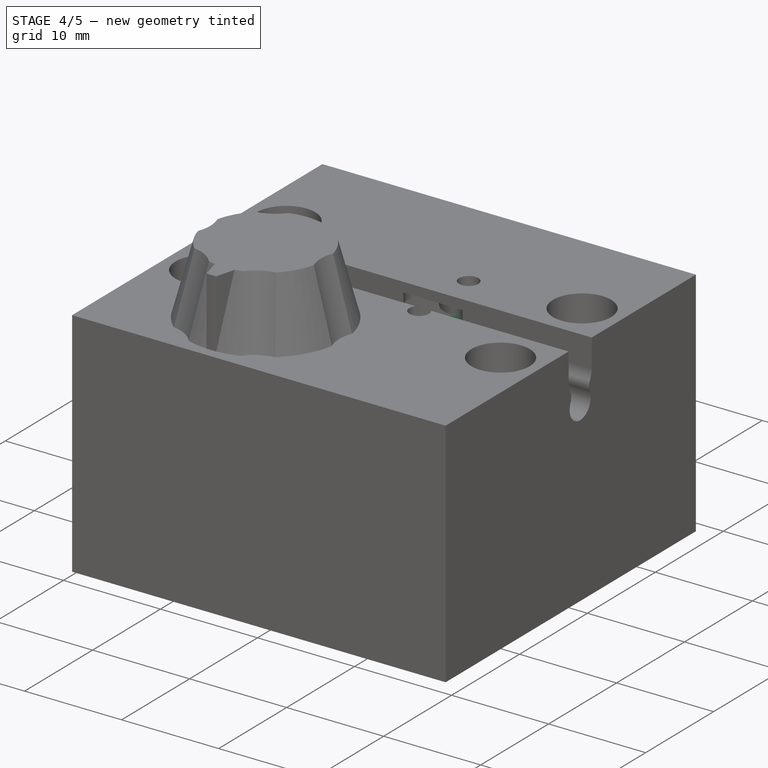
[diagram: stage 4 of 5 — iso view after this stage's code; geometry added in this stage tinted green]
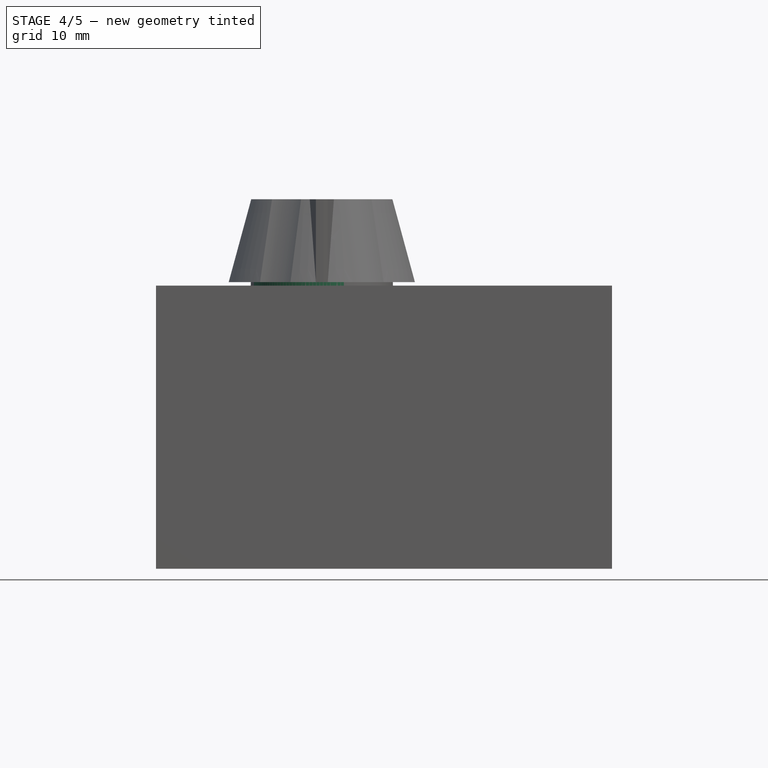
[diagram: stage 4 of 5 — front view after this stage's code; geometry added in this stage tinted green]
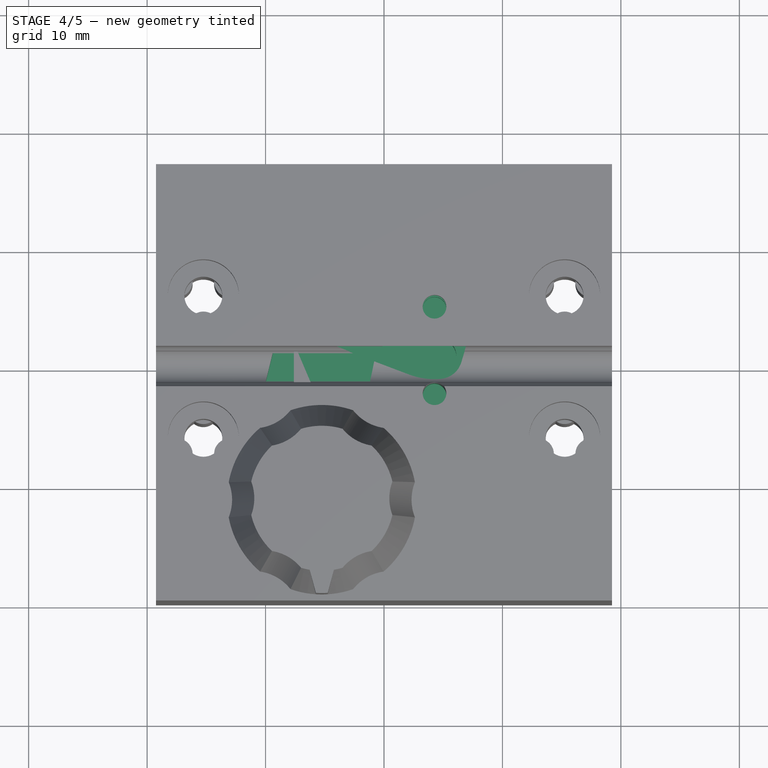
[diagram: stage 4 of 5 — top view after this stage's code; geometry added in this stage tinted green]
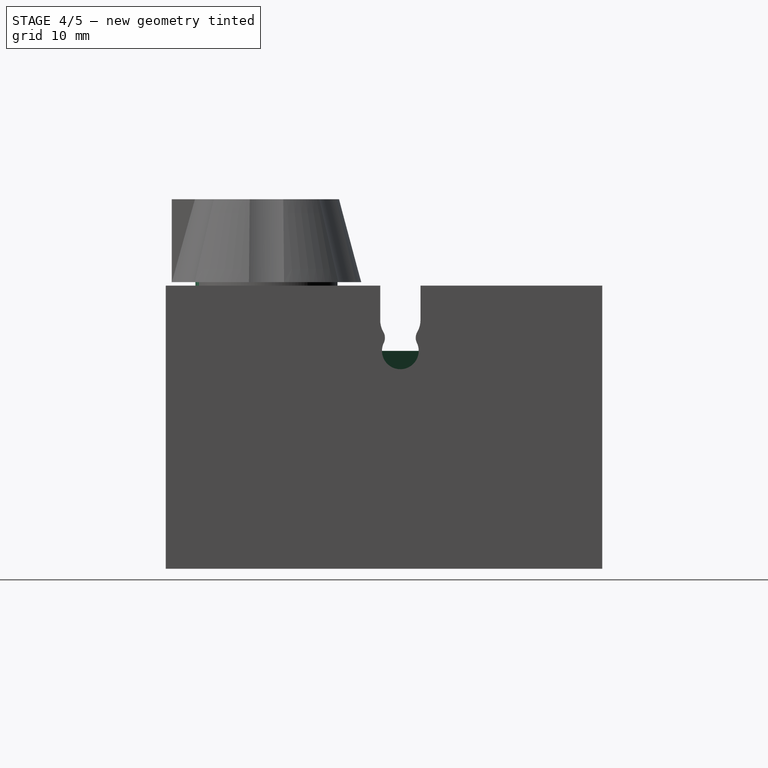
[diagram: stage 4 of 5 — right view after this stage's code; geometry added in this stage tinted green]
FEATURE [PartDesign::Body] Body001  label="Lower Link"
  AllowCompound = false
  Group = -> [Binder004,Pad003,Pad004,Binder007,Pocket001]
  Origin = -> Origin004
  Placement = pos=(0,0,-1.7) rot=(0,0,1;0rad)
  Tip = -> Pocket001
FEATURE [PartDesign::SubShapeBinder] Binder008
  BindCopyOnChange = 0
  BindMode = 0
  ClaimChildren = false
  Context = -> Part [Body001.Binder004.]
  Fuse = false
  MakeFace = true
  OffsetFill = false
  OffsetIntersection = false
  OffsetJoinType = 0
  OffsetOpenResult = false
  PartialLoad = false
  Refine = true
  Relative = true
  Support = -> [Sketch005]
  _Version = 2
FEATURE [PartDesign::SubShapeBinder] Binder009
  BindCopyOnChange = 0
  BindMode = 0
  ClaimChildren = false
  Context = -> Part [Part001.Body002.Binder009.]
  Fuse = false
  MakeFace = true
  OffsetFill = false
  OffsetIntersection = false
  OffsetJoinType = 0
  OffsetOpenResult = false
  PartialLoad = false
  Refine = true
  Relative = true
  Support = -> [Sketch]
  _Version = 2
FEATURE [App::Point] Origin011  label="Origin013"
  Role = Origin
FEATURE [PartDesign::Pad] Pad005
  Direction = (0,0,1)
  Length = 1.7
  Length2 = 10
  Profile = -> Binder008 [Edge3,Edge4,Edge5,Edge6]
  Refine = true
  Reversed = true
  SideType = 0
  Suppressed = false
  Type = 0
  Type2 = 0
FEATURE [App::Point] Origin017  label="Origin020"
  Role = Origin
FEATURE [PartDesign::SubShapeBinder] Binder011
  BindCopyOnChange = 0
  BindMode = 0
  ClaimChildren = false
  Context = -> Part [Part002.Body004.Binder011.]
  Fuse = false
  MakeFace = true
  OffsetFill = false
  OffsetIntersection = false
  OffsetJoinType = 0
  OffsetOpenResult = false
  PartialLoad = false
  Refine = true
  Relative = true
  Support = -> [Sketch006]
  _Version = 2
FEATURE [Sketcher::SketchObject] Sketch010
  ArcFitTolerance = 1e-06
  AttachmentSupport = -> [Origin016]
  ExternalGeometry = -> [Binder011]
  ExternalTypes = [0,0,0,0,0,0,0,0]
  FullyConstrained = true
  MakeInternals = true
  MapMode = 5
  _ExternalGeoVersion = 1
FEATURE [PartDesign::Pad] Pad011
  Direction = (0,0,1)
  Length = 1.9
  Length2 = 10
  Profile = -> Sketch010 [Edge4,Edge2]
  ReferenceAxis = -> Sketch010 [N_Axis]
  Refine = true
  SideType = 0
  Suppressed = false
  Type = 0
  Type2 = 0
FEATURE [PartDesign::Pad] Pad012
  BaseFeature = -> Pad011
  Direction = (0,0,1)
  Length = 6
  Length2 = 10
  Profile = -> Sketch010 [Edge3,Edge4,Edge1]
  ReferenceAxis = -> Sketch010 [N_Axis]
  Refine = true
  SideType = 1
  Suppressed = false
  Type = 0
  Type2 = 3
  UpToFace2 = -> Pad011 [Face4]
FEATURE [PartDesign::Pocket] Pocket004
  BaseFeature = -> Pad012
  Direction = (0,0,-1)
  Length = 5
  Length2 = 5
  Profile = -> Sketch010 [Edge7,Edge5,Edge6,Edge8]
  ReferenceAxis = -> Sketch010 [N_Axis]
  Refine = true
  SideType = 2
  Suppressed = false
  Type = 1
  Type2 = 0
FEATURE [PartDesign::Pocket] Pocket007  label="Bell Crank Clearance001"
  BaseFeature = -> MultiTransform
  Direction = (0,0,-1)
  Length = 4.3
  Length2 = 5
  Profile = -> Binder017
  Refine = true
  SideType = 0
  Suppressed = false
  Type = 0
  Type2 = 0
FEATURE [PartDesign::Pocket] Pocket008  label="Pinch Pin Clearance"
  BaseFeature = -> Pocket007
  Direction = (0,0,-1)
  Length = 9
  Length2 = 5
  Profile = -> Binder017 [Edge10,Edge13,Edge11,Edge12]
  Refine = true
  SideType = 0
  Suppressed = false
  Type = 0
  Type2 = 0
FEATURE [PartDesign::Pocket] Pocket009  label="Linkage Clearance001"
  BaseFeature = -> Pocket008
  Direction = (0,0,-1)
  Length = 6.7
  Length2 = 5
  Profile = -> Binder016
  Refine = true
  SideType = 0
  Suppressed = false
  Type = 0
  Type2 = 0
FEATURE [PartDesign::Pocket] Pocket010  label="Linkage Pin Clearance"
  BaseFeature = -> Pocket009
  Direction = (0,0,-1)
  Length = 14
  Length2 = 5
  Profile = -> Binder016 [Edge9,Edge7,Edge10,Edge8]
  Refine = true
  SideType = 0
  Suppressed = false
  Type = 0
  Type2 = 0
FEATURE [PartDesign::Pocket] Pocket016
  BaseFeature = -> Pocket010
  Direction = (0,0,-1)
  Length = 6
  Length2 = 5
  Profile = -> Binder015 [Edge12]
  Refine = true
  SideType = 0
  Suppressed = false
  Type = 0
  Type2 = 0
FEATURE [PartDesign::Pocket] Pocket021
  BaseFeature = -> Pocket016
  Direction = (0,0,-1)
  Length = 7
  Length2 = 5
  Profile = -> Binder015 [Edge16]
  Refine = true
  SideType = 0
  Suppressed = false
  Type = 0
  Type2 = 0
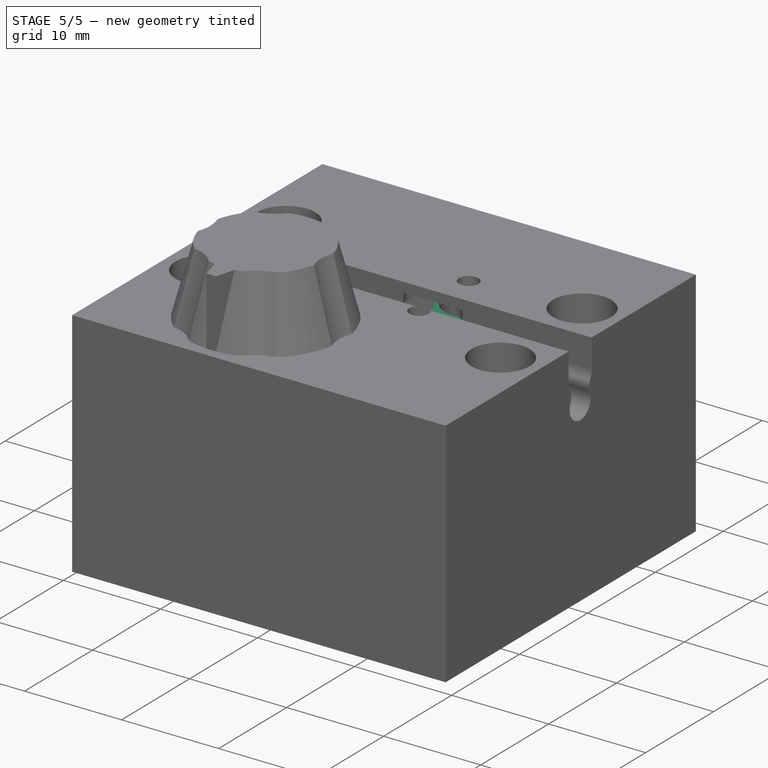
[diagram: stage 5 of 5 — iso view after this stage's code; geometry added in this stage tinted green]
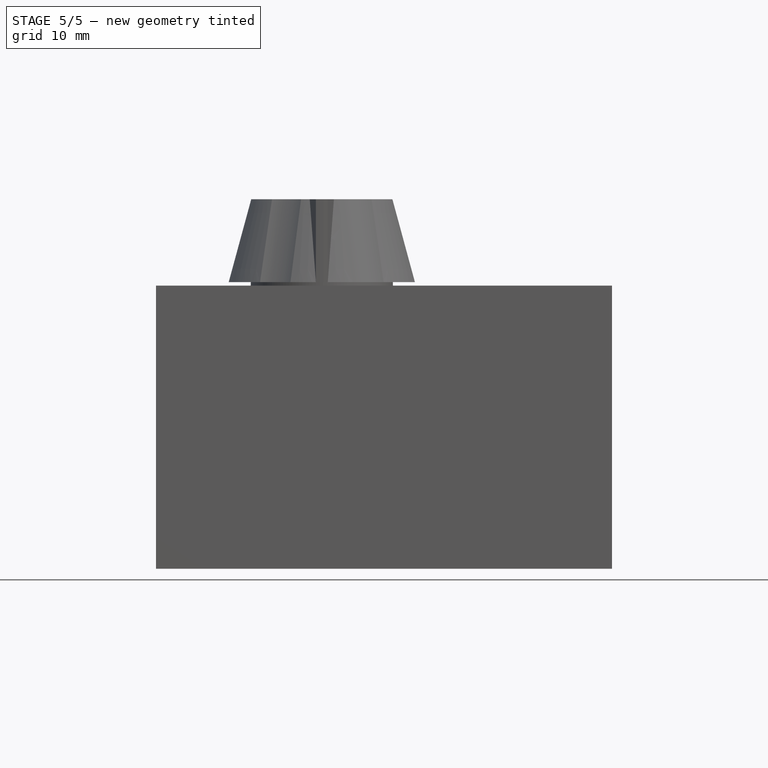
[diagram: stage 5 of 5 — front view after this stage's code; geometry added in this stage tinted green]
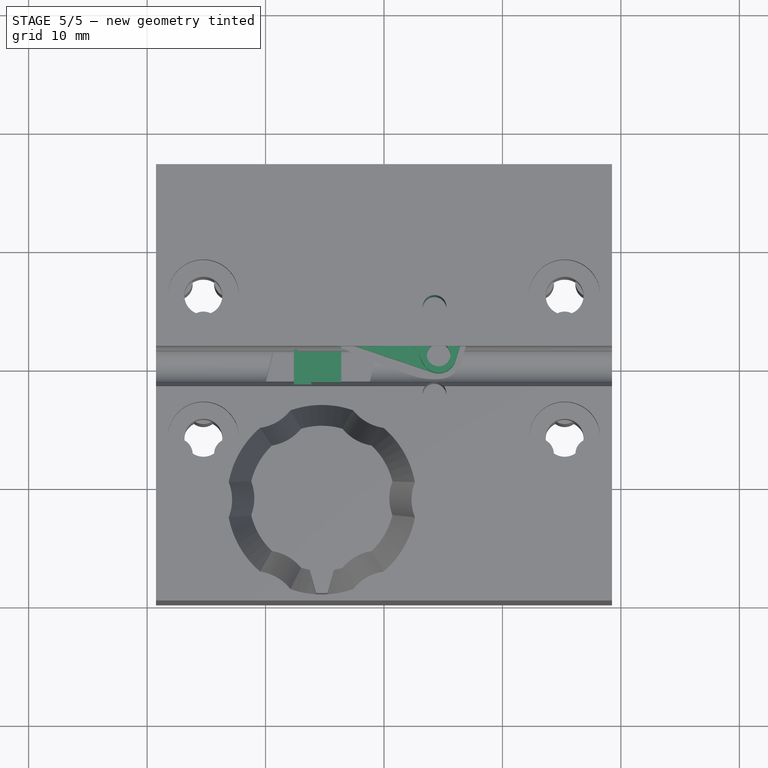
[diagram: stage 5 of 5 — top view after this stage's code; geometry added in this stage tinted green]
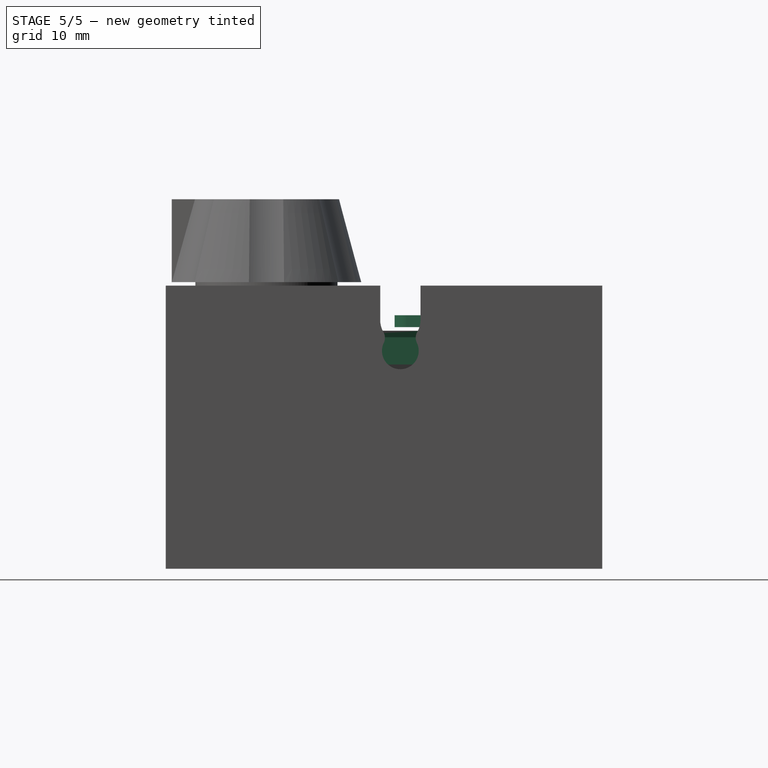
[diagram: stage 5 of 5 — right view after this stage's code; geometry added in this stage tinted green]
FEATURE [App::Point] Origin001
  Role = Origin
FEATURE [App::VarSet] VarSet
  bearing_id = 2
  bearing_od = 5
  crankshaft_excentriciy = 4.5
  pin_dia = 2
  screw_size = 3
  screwhead_dia = 5.5
  squish = 1.7
  tube_od = 3
FEATURE [Sketcher::SketchObject] Sketch  label="main"
  ArcFitTolerance = 1e-06
  AttachmentSupport = -> [Origin]
  ExternalTypes = [0]
  FullyConstrained = true
  MakeInternals = true
  MapMode = 5
  _ExternalGeoVersion = 1
  expr: Constraints[117] = VarSet.screwhead_dia + 0.5 mm
  expr: Constraints[118] = VarSet.screw_size + 0.2 mm
  expr: Constraints[159] = VarSet.pin_dia
  expr: Constraints[36] = VarSet.crankshaft_excentriciy * 2
  expr: Constraints[41] = VarSet.bearing_od
  expr: Constraints[43] = VarSet.bearing_id
  expr: Constraints[51] = VarSet.tube_od - VarSet.squish
  expr: Constraints[53] = VarSet.tube_od - VarSet.squish
  expr: Constraints[56] = VarSet.pin_dia
  expr: Constraints[62] = VarSet.tube_od
  sketch-geometry (76):
    g0: LineSegment StartX=-11.25 StartY=-5.3 StartZ=0 EndX=-11.25 EndY=-17.3 EndZ=0
    g1: LineSegment StartX=-11.25 StartY=-17.3 StartZ=0 EndX=11.25 EndY=-17.3 EndZ=0
    g2: LineSegment StartX=11.25 StartY=-17.3 StartZ=0 EndX=11.25 EndY=-5.3 EndZ=0
    g3: LineSegment StartX=11.25 StartY=-5.3 StartZ=0 EndX=-11.25 EndY=-5.3 EndZ=0
    g4: LineSegment StartX=-16.25 StartY=-5.3 StartZ=0 EndX=-16.25 EndY=-17.3 EndZ=0
    g5: LineSegment StartX=-16.25 StartY=-17.3 StartZ=0 EndX=16.25 EndY=-17.3 EndZ=0
    g6: LineSegment StartX=16.25 StartY=-17.3 StartZ=0 EndX=16.25 EndY=-5.3 EndZ=0
    g7: LineSegment StartX=16.25 StartY=-5.3 StartZ=0 EndX=-16.25 EndY=-5.3 EndZ=0
    g8: GeomPoint X=0 Y=-5.3 Z=0
    g9: Circle CenterX=-13.75 CenterY=-11.3 CenterZ=0 NormalX=0 NormalY=0 NormalZ=1 AngleXU=0 Radius=1.15
    g10: Circle CenterX=13.75 CenterY=-11.3 CenterZ=0 NormalX=0 NormalY=0 NormalZ=1 AngleXU=0 Radius=1.15
    g11: GeomPoint X=1e-16 Y=-11.3 Z=0
    g12: Circle CenterX=-5.25 CenterY=-11.3 CenterZ=0 NormalX=0 NormalY=0 NormalZ=1 AngleXU=0 Radius=2.6
    g13: Circle [constr] CenterX=-5.25 CenterY=-11.3 CenterZ=0 NormalX=0 NormalY=0 NormalZ=1 AngleXU=0 Radius=6
    g14: Circle CenterX=4.26428 CenterY=5 CenterZ=0 NormalX=0 NormalY=0 NormalZ=1 AngleXU=0 Radius=1
    g15: Circle CenterX=4.6129 CenterY=1.01522 CenterZ=0 NormalX=0 NormalY=0 NormalZ=1 AngleXU=0 Radius=1
    g16: Circle CenterX=-0.687129 CenterY=13.5418 CenterZ=0 NormalX=0 NormalY=0 NormalZ=1 AngleXU=0 Radius=1
    g17: Circle [constr] CenterX=-5.25 CenterY=-11.3 CenterZ=0 NormalX=0 NormalY=0 NormalZ=1 AngleXU=0 Radius=4.5
    g18: GeomPoint [constr] X=-5.60882 Y=-15.7857 Z=0
    g19: GeomPoint [constr] X=-4.89118 Y=-6.81433 Z=0
    g20: Circle [constr] CenterX=4.26428 CenterY=5 CenterZ=0 NormalX=0 NormalY=0 NormalZ=1 AngleXU=0 Radius=4
    g21: Circle [constr] CenterX=4.26428 CenterY=5 CenterZ=0 NormalX=0 NormalY=0 NormalZ=1 AngleXU=0 Radius=9.87309
    g22: Circle CenterX=4.26428 CenterY=5 CenterZ=0 NormalX=0 NormalY=0 NormalZ=1 AngleXU=0 Radius=2.5
    g23: LineSegment [constr] StartX=4.26428 StartY=5 StartZ=0 EndX=4.6129 EndY=1.01522 EndZ=0
    g24: Circle [constr] CenterX=4.26428 CenterY=5 CenterZ=0 NormalX=0 NormalY=0 NormalZ=1 AngleXU=0 Radius=5
    g25: GeomPoint [constr] X=4.26428 Y=-1e-16 Z=0
    g26: GeomPoint [constr] X=4.26428 Y=-1.3 Z=0
    g27: Circle CenterX=4.26428 CenterY=-2.3 CenterZ=0 NormalX=0 NormalY=0 NormalZ=1 AngleXU=0 Radius=1
    g28: Circle CenterX=0.991665 CenterY=2.7 CenterZ=0 NormalX=0 NormalY=0 NormalZ=1 AngleXU=0 Radius=1
    g29: LineSegment [constr] StartX=4.26428 StartY=5 StartZ=0 EndX=0.991665 EndY=2.7 EndZ=0
    g30: GeomPoint [constr] X=0.991665 Y=1.7 Z=0
    g31: Circle CenterX=-5.60882 CenterY=5 CenterZ=0 NormalX=0 NormalY=0 NormalZ=1 AngleXU=0 Radius=1
    g32: LineSegment [constr] StartX=-5.60882 StartY=5 StartZ=0 EndX=4.26428 EndY=5 EndZ=0
    g33: LineSegment [constr] StartX=-0.687129 StartY=13.5418 StartZ=0 EndX=4.26428 EndY=5 EndZ=0
    g34: GeomPoint [constr] X=2.25826 Y=8.46062 Z=0
    g35: GeomPoint [constr] X=0.264279 Y=5 Z=0
    g36: LineSegment [constr] StartX=2.25826 StartY=8.46062 StartZ=0 EndX=0.264279 EndY=5 EndZ=0
    g37: LineSegment [constr] StartX=0.991665 StartY=2.7 StartZ=0 EndX=4.6129 EndY=1.01522 EndZ=0
    g38: Circle CenterX=-5.60882 CenterY=-15.7857 CenterZ=0 NormalX=0 NormalY=0 NormalZ=1 AngleXU=0 Radius=1
    g39: Circle CenterX=-4.89118 CenterY=-6.81433 CenterZ=0 NormalX=0 NormalY=0 NormalZ=1 AngleXU=0 Radius=1
    g40: LineSegment [constr] StartX=-0.687129 StartY=13.5418 StartZ=0 EndX=-5.25 EndY=-11.3 EndZ=0
    g41: LineSegment [constr] StartX=-5.60882 StartY=5 StartZ=0 EndX=-5.25 EndY=-11.3 EndZ=0
    g42: LineSegment [constr] StartX=-4.89118 StartY=-6.81433 StartZ=0 EndX=-5.34852 EndY=-6.8244 EndZ=0
    g43: LineSegment [constr] StartX=-4.89118 StartY=-6.81433 StartZ=0 EndX=-4.44126 EndY=-6.89697 EndZ=0
    g44: LineSegment StartX=-5.60882 StartY=5 StartZ=0 EndX=-5.60882 EndY=-15.7857 EndZ=0
    g45: LineSegment StartX=-0.687129 StartY=13.5418 StartZ=0 EndX=-4.89118 EndY=-6.81433 EndZ=0
    g46: LineSegment StartX=-19.25 StartY=-19.8 StartZ=0 EndX=19.25 EndY=-19.8 EndZ=0
    g47: LineSegment StartX=19.25 StartY=-19.8 StartZ=0 EndX=19.25 EndY=17.0418 EndZ=0
    g48: LineSegment StartX=19.25 StartY=17.0418 StartZ=0 EndX=-19.25 EndY=17.0418 EndZ=0
    g49: LineSegment StartX=-19.25 StartY=17.0418 StartZ=0 EndX=-19.25 EndY=-19.8 EndZ=0
    g50: Circle CenterX=-15.25 CenterY=6 CenterZ=0 NormalX=0 NormalY=0 NormalZ=1 AngleXU=0 Radius=3
    g51: Circle CenterX=-15.25 CenterY=6 CenterZ=0 NormalX=0 NormalY=0 NormalZ=1 AngleXU=0 Radius=1.6
    g52: Circle CenterX=15.25 CenterY=6 CenterZ=0 NormalX=0 NormalY=0 NormalZ=1 AngleXU=0 Radius=1.6
    g53: Circle CenterX=15.25 CenterY=6 CenterZ=0 NormalX=0 NormalY=0 NormalZ=1 AngleXU=0 Radius=3
    g54: Circle CenterX=-15.25 CenterY=-6 CenterZ=0 NormalX=0 NormalY=0 NormalZ=1 AngleXU=0 Radius=1.6
    g55: Circle CenterX=15.25 CenterY=-6 CenterZ=0 NormalX=0 NormalY=0 NormalZ=1 AngleXU=0 Radius=1.6
    g56: Circle CenterX=-15.25 CenterY=-6 CenterZ=0 NormalX=0 NormalY=0 NormalZ=1 AngleXU=0 Radius=3
    g57: Circle CenterX=15.25 CenterY=-6 CenterZ=0 NormalX=0 NormalY=0 NormalZ=1 AngleXU=0 Radius=3
    g58: LineSegment [constr] StartX=-15.25 StartY=6 StartZ=0 EndX=-15.25 EndY=-6 EndZ=0
    g59: LineSegment [constr] StartX=-15.25 StartY=-6 StartZ=0 EndX=15.25 EndY=-6 EndZ=0
    g60: LineSegment [constr] StartX=15.25 StartY=-6 StartZ=0 EndX=15.25 EndY=6 EndZ=0
    g61: LineSegment [constr] StartX=15.25 StartY=6 StartZ=0 EndX=-15.25 EndY=6 EndZ=0
    g62: GeomPoint [constr] X=11.25 Y=-6 Z=0
    g63: GeomPoint [constr] X=19.25 Y=-6 Z=0
    g64: LineSegment StartX=-11.75 StartY=-4.8 StartZ=0 EndX=-11.75 EndY=-17.8 EndZ=0
    g65: LineSegment StartX=-11.75 StartY=-17.8 StartZ=0 EndX=11.75 EndY=-17.8 EndZ=0
    g66: LineSegment StartX=11.75 StartY=-17.8 StartZ=0 EndX=11.75 EndY=-4.8 EndZ=0
    g67: LineSegment StartX=11.75 StartY=-4.8 StartZ=0 EndX=-11.75 EndY=-4.8 EndZ=0
    g68: Circle CenterX=-5.25 CenterY=-11.3 CenterZ=0 NormalX=0 NormalY=0 NormalZ=1 AngleXU=0 Radius=1
    g69: ArcOfCircle CenterX=-5.25 CenterY=-11.3 CenterZ=0 NormalX=0 NormalY=0 NormalZ=1 AngleXU=0 Radius=6 StartAngle=6.10865 EndAngle=9.59931
    g70: ArcOfCircle CenterX=-9.68163 CenterY=-12.0814 CenterZ=0 NormalX=0 NormalY=0 NormalZ=1 AngleXU=0 Radius=1.5 StartAngle=3.31613 EndAngle=6.45772
    g71: ArcOfCircle CenterX=-0.818365 CenterY=-12.0814 CenterZ=0 NormalX=0 NormalY=0 NormalZ=1 AngleXU=0 Radius=1.5 StartAngle=2.96706 EndAngle=6.10865
    g72: ArcOfCircle CenterX=-5.25 CenterY=-11.3 CenterZ=0 NormalX=0 NormalY=0 NormalZ=1 AngleXU=0 Radius=3 StartAngle=6.10865 EndAngle=9.59931
    g73: LineSegment [constr] StartX=-9.68163 StartY=-12.0814 StartZ=0 EndX=-5.25 EndY=-11.3 EndZ=0
    g74: LineSegment [constr] StartX=-5.25 StartY=-11.3 StartZ=0 EndX=-0.818365 EndY=-12.0814 EndZ=0
    g75: Circle CenterX=-9.75 CenterY=-11.3 CenterZ=0 NormalX=0 NormalY=0 NormalZ=1 AngleXU=0 Radius=1
  constraints (178):
    c: Coincident(g0,g1)
    c: Coincident(g1,g2)
    c: Coincident(g2,g3)
    c: Coincident(g3,g0)
    c: Vertical(g0)
    c: Vertical(g2)
    c: Horizontal(g1)
    c: Horizontal(g3)
    c: DistanceY(g0,g0) = 12
    c: DistanceX(g3,g3) = 22.5
    c: Coincident(g4,g5)
    c: Coincident(g5,g6)
    c: Coincident(g6,g7)
    c: Coincident(g7,g4)
    c: Vertical(g4)
    c: Vertical(g6)
    c: Horizontal(g5)
    c: Horizontal(g7)
    c: PointOnObject(g1,g5)
    c: DistanceX(g7,g7) = 32.5
    c: Symmetric(g3,g3,g8)
    c: Symmetric(g6,g4,g8)
    c: Equal(g10,g9)
    c: DistanceX(g9,g10) = 27.5
    c: Symmetric(g9,g10,g11)
    c: Symmetric(g0,g2,g11)
    c: Diameter(g9) = 2.3
    c: Diameter(g12) = 5.2
    c: Coincident(g13,g12)
    c: Tangent(g13,g1)
    c: Tangent(g13,g0)
    c: Tangent(g13,g3)
    c: PointOnObject(g8,g-2)
    c: Coincident(g17,g12)
    c: PointOnObject(g18,g17)
    c: Symmetric(g18,g19,g12)
    c: Diameter(g17) = 9
    c: Coincident(g20,g14)
    c: PointOnObject(g15,g20)
    c: Coincident(g21,g14)
    c: PointOnObject(g16,g21)
    c: Diameter(g22) = 5
    c: Coincident(g22,g14)
    c: Diameter(g15) = 2
    c: Coincident(g23,g14)
    c: Coincident(g23,g15)
    c: Angle(g-2,g23) = 0.0872665
    c: Coincident(g24,g14)
    c: Equal(g14,g15)
    c: PointOnObject(g25,g24)
    c: Vertical(g25,g14)
    c: DistanceY(g26,g-1) = 1.3
    c: Vertical(g25,g26)
    c: Distance(g25,g26) = 1.3
    c: PointOnObject(g26,g27)
    c: Vertical(g27,g26)
    c: Diameter(g27) = 2
    c: PointOnObject(g28,g20)
    c: Equal(g28,g15)
    c: Coincident(g29,g14)
    c: Coincident(g29,g28)
    c: Vertical(g28,g30)
    c: DistanceY(g26,g30) = 3
    c: PointOnObject(g31,g21)
    c: Equal(g16,g31)
    c: Equal(g16,g27)
    c: Coincident(g32,g31)
    c: Coincident(g32,g14)
    c: Horizontal(g32)
    c: Coincident(g33,g16)
    c: Coincident(g33,g14)
    c: PointOnObject(g34,g33)
    c: PointOnObject(g35,g32)
    c: PointOnObject(g35,g20)
    c: PointOnObject(g34,g20)
    c: Coincident(g36,g34)
    c: Coincident(g36,g35)
    c: Coincident(g37,g28)
    c: Coincident(g37,g15)
    c: Equal(g36,g37)
    c: Coincident(g38,g18)
    c: Coincident(g39,g19)
    c: Equal(g39,g38)
    c: Equal(g38,g27)
    c: Coincident(g40,g16)
    c: Coincident(g40,g12)
    c: Coincident(g41,g31)
    c: Coincident(g41,g12)
    c: Coincident(g42,g19)
    c: PointOnObject(g42,g41)
    c: Coincident(g43,g19)
    c: PointOnObject(g43,g40)
    c: Equal(g43,g42)
    c: Perpendicular(g41,g42)
    c: Perpendicular(g40,g43)
    c: Coincident(g44,g31)
    c: Coincident(g44,g18)
    c: Coincident(g45,g16)
    c: Coincident(g45,g19)
    c: Equal(g44,g45)
    c: Distance(g27,g3) = 2
    c: Horizontal(g10,g9)
    c: Distance(g15,g22) = 0.5
    c: Tangent(g15,g24)
    c: PointOnObject(g30,g28)
    c: Coincident(g46,g47)
    c: Coincident(g47,g48)
    c: Coincident(g48,g49)
    c: Coincident(g49,g46)
    c: Horizontal(g48)
    c: Vertical(g47)
    c: Vertical(g49)
    c: Symmetric(g46,g46,g-2)
    c: DistanceX(g46,g46) = 38.5
    c: Distance(g16,g48) = 2.5
    c: Distance(g46,g5) = 2.5
    c: DistanceY(g49,g49) = 36.8418
    c: Diameter(g50) = 6
    c: Diameter(g51) = 3.2
    c: Coincident(g51,g50)
    c: Coincident(g53,g52)
    c: Equal(g53,g50)
    c: Equal(g51,g52)
    c: Coincident(g56,g54)
    c: Coincident(g57,g55)
    c: Equal(g57,g53)
    c: Equal(g55,g52)
    c: Equal(g54,g51)
    c: Equal(g50,g56)
    c: DistanceX(g1,g46) = 8
    c: Distance(g57,g-1) = 3
    c: Coincident(g58,g59)
    c: Coincident(g59,g60)
    c: Coincident(g60,g61)
    c: Coincident(g61,g58)
    c: Vertical(g60)
    c: Horizontal(g61)
    c: Coincident(g58,g50)
    c: Coincident(g59,g55)
    c: Coincident(g52,g60)
    c: Coincident(g54,g58)
    c: Symmetric(g55,g54,g-2)
    c: PointOnObject(g62,g2)
    c: PointOnObject(g63,g47)
    c: Symmetric(g63,g62,g55)
    c: Horizontal(g62,g63)
    c: Symmetric(g50,g54,g-1)
    c: Vertical(g44)
    c: Coincident(g64,g65)
    c: Coincident(g65,g66)
    c: Coincident(g66,g67)
    c: Coincident(g67,g64)
    c: Vertical(g64)
    c: Vertical(g66)
    c: Horizontal(g65)
    c: Horizontal(g67)
    c: Distance(g1,g65) = 0.5
    c: Distance(g1,g66) = 0.5
    c: Symmetric(g65,g64,g11)
    c: Diameter(g68) = 2
    c: Coincident(g68,g12)
    c: Coincident(g69,g72)
    c: Tangent(g72,g71) = 1.5708
    c: Tangent(g72,g70) = 1.5708
    c: Tangent(g69,g71) = -1.5708
    c: Tangent(g69,g70) = -1.5708
    c: Coincident(g69,g12)
    c: PointOnObject(g70,g17)
    c: Distance(g39,g72) = 0.5
    c: Coincident(g73,g70)
    c: Coincident(g73,g12)
    c: Coincident(g74,g12)
    c: Coincident(g74,g71)
    c: Angle(g73,g74) = 2.79253
    c: Horizontal(g70,g71)
    c: PointOnObject(g75,g17)
    c: Horizontal(g75,g12)
    c: Equal(g75,g39)
FEATURE [Sketcher::SketchObject] Sketch001  label="Bell Crank 1"
  ArcFitTolerance = 1e-06
  AttachmentSupport = -> [Origin]
  ExternalGeometry = -> [Sketch]
  ExternalTypes = [0,0,0]
  FullyConstrained = true
  MakeInternals = true
  MapMode = 5
  _ExternalGeoVersion = 1
  sketch-geometry (6):
    g0: ArcOfCircle CenterX=-5.60882 CenterY=5 CenterZ=0 NormalX=0 NormalY=0 NormalZ=1 AngleXU=0 Radius=2 StartAngle=1.67226 EndAngle=4.38627
    g1: ArcOfCircle CenterX=4.26428 CenterY=5 CenterZ=0 NormalX=0 NormalY=0 NormalZ=1 AngleXU=0 Radius=3 StartAngle=5.98605 EndAngle=7.95544
    g2: ArcOfCircle CenterX=4.6129 CenterY=1.01522 CenterZ=0 NormalX=0 NormalY=0 NormalZ=1 AngleXU=0 Radius=1.5 StartAngle=4.38627 EndAngle=5.98605
    g3: LineSegment StartX=7.13282 StartY=4.12167 StartZ=0 EndX=6.04717 EndY=0.576055 EndZ=0
    g4: LineSegment StartX=4.13234 StartY=-0.405717 StartZ=0 EndX=-6.24956 EndY=3.10542 EndZ=0
    g5: LineSegment StartX=-5.81139 StartY=6.98971 StartZ=0 EndX=3.96042 EndY=7.98457 EndZ=0
  constraints (12):
    c: Coincident(g0,g-5)
    c: Coincident(g1,g-3)
    c: Coincident(g2,g-4)
    c: Distance(g-4,g2) = 0.5
    c: Distance(g-5,g0) = 1
    c: Distance(g-3,g1) = 0.5
    c: Tangent(g5,g1) = 1.5708
    c: Tangent(g5,g0) = 1.5708
    c: Tangent(g4,g0) = 1.5708
    c: Tangent(g4,g2) = 1.5708
    c: Tangent(g3,g2) = 1.5708
    c: Tangent(g3,g1) = 1.5708
FEATURE [Sketcher::SketchObject] Sketch002  label="Bell Crank 2"
  ArcFitTolerance = 1e-06
  AttachmentSupport = -> [Origin]
  ExternalGeometry = -> [Sketch]
  ExternalTypes = [0,0]
  FullyConstrained = true
  MakeInternals = true
  MapMode = 5
  _ExternalGeoVersion = 1
  sketch-geometry (4):
    g0: ArcOfCircle CenterX=4.26428 CenterY=5 CenterZ=0 NormalX=0 NormalY=0 NormalZ=1 AngleXU=0 Radius=3 StartAngle=5.98605 EndAngle=9.89644
    g1: ArcOfCircle CenterX=4.6129 CenterY=1.01522 CenterZ=0 NormalX=0 NormalY=0 NormalZ=1 AngleXU=0 Radius=1.5 StartAngle=3.61326 EndAngle=5.98605
    g2: LineSegment StartX=1.59184 StartY=3.63689 StartZ=0 EndX=3.27668 EndY=0.333668 EndZ=0
    g3: LineSegment StartX=6.04717 StartY=0.576055 StartZ=0 EndX=7.13282 EndY=4.12167 EndZ=0
  constraints (8):
    c: Coincident(g0,g-3)
    c: Coincident(g1,g-4)
    c: Tangent(g3,g0) = -1.5708
    c: Tangent(g3,g1) = -1.5708
    c: Tangent(g2,g1) = -1.5708
    c: Tangent(g2,g0) = -1.5708
    c: Distance(g0,g-3) = 0.5
    c: Distance(g-4,g1) = 0.5
FEATURE [Sketcher::SketchObject] Sketch003  label="Bell Crank 3"
  ArcFitTolerance = 1e-06
  AttachmentSupport = -> [Origin]
  ExternalGeometry = -> [Sketch]
  ExternalTypes = [0]
  FullyConstrained = true
  MakeInternals = true
  MapMode = 5
  _ExternalGeoVersion = 1
  sketch-geometry (1):
    g0: Circle CenterX=4.26428 CenterY=5 CenterZ=0 NormalX=0 NormalY=0 NormalZ=1 AngleXU=0 Radius=3
  constraints (2):
    c: Coincident(g0,g-3)
    c: Distance(g0,g-3) = 0.5
FEATURE [Sketcher::SketchObject] Sketch005  label="Linkage"
  ArcFitTolerance = 1e-06
  AttachmentSupport = -> [Origin]
  ExternalGeometry = -> [Sketch]
  ExternalTypes = [0,0,0,0,0,0]
  FullyConstrained = true
  MakeInternals = true
  MapMode = 5
  _ExternalGeoVersion = 1
  sketch-geometry (16):
    g0: ArcOfCircle CenterX=-5.60882 CenterY=5 CenterZ=0 NormalX=0 NormalY=0 NormalZ=1 AngleXU=0 Radius=2 StartAngle=1e-16 EndAngle=3.14159
    g1: ArcOfCircle CenterX=-5.60882 CenterY=-15.7857 CenterZ=0 NormalX=0 NormalY=0 NormalZ=1 AngleXU=0 Radius=2 StartAngle=3.14159 EndAngle=6.28319
    g2: LineSegment [constr] StartX=-3.60882 StartY=5 StartZ=0 EndX=-3.60882 EndY=-15.7857 EndZ=0
    g3: LineSegment [constr] StartX=-7.60882 StartY=5 StartZ=0 EndX=-7.60882 EndY=-15.7857 EndZ=0
    g4: LineSegment [constr] StartX=-0.687129 StartY=13.5418 StartZ=0 EndX=-2.64757 EndY=13.146 EndZ=0
    g5: LineSegment [constr] StartX=-2.64757 StartY=13.146 StartZ=0 EndX=-0.478668 EndY=2.40315 EndZ=0
    g6: LineSegment [constr] StartX=-0.478668 StartY=2.40315 StartZ=0 EndX=0.991665 EndY=2.7 EndZ=0
    g7: LineSegment [constr] StartX=-5.60882 StartY=5 StartZ=0 EndX=-7.44869 EndY=4.21586 EndZ=0
    g8: LineSegment [constr] StartX=-7.44869 StartY=4.21586 StartZ=0 EndX=-3.1518 EndY=-5.86623 EndZ=0
    g9: LineSegment [constr] StartX=-3.1518 StartY=-5.86623 StartZ=0 EndX=-5.60882 EndY=-5.86623 EndZ=0
    g10: LineSegment [constr] StartX=-0.478668 StartY=2.40315 StartZ=0 EndX=-2.8849 EndY=2.9001 EndZ=0
    g11: LineSegment StartX=-7.60882 StartY=5 StartZ=0 EndX=-7.60882 EndY=2.041 EndZ=0
    g12: LineSegment StartX=-7.60882 StartY=2.041 StartZ=0 EndX=-7.60882 EndY=-15.7857 EndZ=0
    g13: LineSegment StartX=-3.60882 StartY=-15.7857 StartZ=0 EndX=-3.60882 EndY=-7.34448 EndZ=0
    g14: LineSegment StartX=-3.60882 StartY=-7.34448 StartZ=0 EndX=-3.60882 EndY=5 EndZ=0
    g15: LineSegment StartX=-7.60882 StartY=2.041 StartZ=0 EndX=-3.60882 EndY=-7.34448 EndZ=0
  constraints (39):
    c: Tangent(g0,g2) = 1.5708
    c: Tangent(g0,g3) = -1.5708
    c: Tangent(g1,g2) = 1.5708
    c: Tangent(g1,g3) = -1.5708
    c: Equal(g0,g1)
    c: Coincident(g0,g-3)
    c: Coincident(g1,g-4)
    c: Distance(g0,g-3) = 1
    c: Coincident(g-7,g4)
    c: Coincident(g4,g5)
    c: Coincident(g5,g6)
    c: Coincident(g6,g-5)
    c: Perpendicular(g5,g6)
    c: Perpendicular(g5,g4)
    c: Distance(g4,g-6) = 1
    c: Distance(g5,g-5) = 0.5
    c: Coincident(g7,g0)
    c: Coincident(g7,g8)
    c: Coincident(g8,g9)
    c: PointOnObject(g9,g-8)
    c: Coincident(g5,g10)
    c: PointOnObject(g10,g-7)
    c: Perpendicular(g-7,g10)
    c: Perpendicular(g-8,g9)
    c: Distance(g7,g-3) = 1
    c: Perpendicular(g7,g8)
    c: Equal(g10,g9)
    c: Equal(g5,g8)
    c: Tangent(g11,g0) = -1.5708
    c: Coincident(g13,g1)
    c: PointOnObject(g13,g2)
    c: Coincident(g14,g13)
    c: Coincident(g14,g0)
    c: Coincident(g15,g11)
    c: Coincident(g15,g13)
    c: Coincident(g12,g11)
    c: Parallel(g8,g15)
    c: Distance(g8,g15) = 1
    c: Coincident(g12,g1)
FEATURE [Sketcher::SketchObject] Sketch006  label="Crankshaft"
  ArcFitTolerance = 1e-06
  AttachmentSupport = -> [Origin]
  ExternalGeometry = -> [Sketch]
  ExternalTypes = [0,0,0,0,0,0,0]
  FullyConstrained = true
  MakeInternals = true
  MapMode = 5
  _ExternalGeoVersion = 1
  sketch-geometry (13):
    g0: Circle [constr] CenterX=-5.25 CenterY=-11.3 CenterZ=0 NormalX=0 NormalY=0 NormalZ=1 AngleXU=0 Radius=6
    g1: Circle CenterX=-5.25 CenterY=-11.3 CenterZ=0 NormalX=0 NormalY=0 NormalZ=1 AngleXU=0 Radius=1
    g2: LineSegment StartX=-3.10882 StartY=-16.9049 StartZ=0 EndX=-3.10882 EndY=-5.69506 EndZ=0
    g3: Circle CenterX=-1.50882 CenterY=-8.98407 CenterZ=0 NormalX=0 NormalY=0 NormalZ=1 AngleXU=0 Radius=1
    g4: Circle CenterX=-1.50882 CenterY=-13.6159 CenterZ=0 NormalX=0 NormalY=0 NormalZ=1 AngleXU=0 Radius=1
    g5: LineSegment [constr] StartX=-1.50882 StartY=-8.98407 StartZ=0 EndX=-1.50882 EndY=-13.6159 EndZ=0
    g6: LineSegment [constr] StartX=-5.25 StartY=-11.3 StartZ=0 EndX=-1.50882 EndY=-11.3 EndZ=0
    g7: LineSegment [constr] StartX=-1.50882 StartY=-8.98407 StartZ=0 EndX=-3.10882 EndY=-8.98407 EndZ=0
    g8: LineSegment [constr] StartX=-1.50882 StartY=-8.98407 StartZ=0 EndX=-0.148385 EndY=-8.14191 EndZ=0
    g9: Circle CenterX=-5.25 CenterY=-11.3 CenterZ=0 NormalX=0 NormalY=0 NormalZ=1 AngleXU=0 Radius=2
    g10: Circle CenterX=-5.25 CenterY=-11.3 CenterZ=0 NormalX=0 NormalY=0 NormalZ=1 AngleXU=0 Radius=1.2
    g11: ArcOfCircle CenterX=-5.25 CenterY=-11.3 CenterZ=0 NormalX=0 NormalY=0 NormalZ=1 AngleXU=0 Radius=6 StartAngle=1.20589 EndAngle=5.0773
    g12: ArcOfCircle CenterX=-5.25 CenterY=-11.3 CenterZ=0 NormalX=0 NormalY=0 NormalZ=1 AngleXU=0 Radius=6 StartAngle=5.0773 EndAngle=7.48907
  constraints (34):
    c: Coincident(g0,g-3)
    c: Tangent(g0,g-8)
    c: Diameter(g1) = 2
    c: Coincident(g1,g0)
    c: PointOnObject(g2,g0)
    c: PointOnObject(g2,g0)
    c: Parallel(g2,g-7)
    c: Distance(g-4,g2) = 1.5
    c: Equal(g3,g4) = 2
    c: Diameter(g3) = 2
    c: Coincident(g5,g3)
    c: Coincident(g5,g4)
    c: Parallel(g5,g2)
    c: Coincident(g6,g0)
    c: Perpendicular(g5,g6)
    c: Symmetric(g3,g4,g6)
    c: Distance(g3,g2) = 0.6
    c: Coincident(g7,g3)
    c: PointOnObject(g7,g2)
    c: Coincident(g8,g3)
    c: PointOnObject(g8,g0)
    c: Perpendicular(g2,g7)
    c: Perpendicular(g0,g8)
    c: Equal(g8,g7)
    c: Coincident(g9,g0)
    c: Diameter(g9) = 4
    c: Diameter(g10) = 2.4
    c: Coincident(g10,g0)
    c: Coincident(g11,g0)
    c: Coincident(g12,g0)
    c: Coincident(g12,g2)
    c: Coincident(g11,g2)
    c: PointOnObject(g12,g2)
    c: PointOnObject(g11,g2)
FEATURE [Sketcher::SketchObject] Sketch007  label="Linkage Clearance"
  ArcFitTolerance = 1e-06
  AttachmentSupport = -> [Origin]
  ExternalGeometry = -> [Sketch,Sketch006,Sketch005]
  ExternalTypes = [0,0,0,0,0,0,0]
  FullyConstrained = true
  MakeInternals = true
  MapMode = 5
  _ExternalGeoVersion = 1
  sketch-geometry (11):
    g0: LineSegment StartX=1.7612 StartY=13.0361 StartZ=0 EndX=-2.44285 EndY=-7.31997 EndZ=0
    g1: LineSegment StartX=-2.44285 StartY=-7.31997 StartZ=0 EndX=-2.44285 EndY=-17.7125 EndZ=0
    g2: ArcOfCircle CenterX=-5.25 CenterY=-11.3 CenterZ=0 NormalX=0 NormalY=0 NormalZ=1 AngleXU=0 Radius=7 StartAngle=2.90193 EndAngle=5.12502
    g3: LineSegment StartX=-12.0499 StartY=-9.63836 StartZ=0 EndX=-7.75516 EndY=7.93709 EndZ=0
    g4: ArcOfCircle CenterX=4.26428 CenterY=5 CenterZ=0 NormalX=0 NormalY=0 NormalZ=1 AngleXU=0 Radius=12.3731 StartAngle=2.09613 EndAngle=2.90193
    g5: ArcOfCircle CenterX=-0.687129 CenterY=13.5418 CenterZ=0 NormalX=0 NormalY=0 NormalZ=1 AngleXU=0 Radius=2.5 StartAngle=6.07952 EndAngle=8.37932
    g6: LineSegment [constr] StartX=-4.89118 StartY=-6.81433 StartZ=0 EndX=-2.44285 EndY=-7.31997 EndZ=0
    g7: ArcOfCircle CenterX=4.26428 CenterY=5 CenterZ=0 NormalX=0 NormalY=0 NormalZ=1 AngleXU=0 Radius=11.3731 StartAngle=2.09613 EndAngle=3.14159
    g8: ArcOfCircle CenterX=-5.60882 CenterY=5 CenterZ=0 NormalX=0 NormalY=0 NormalZ=1 AngleXU=0 Radius=1.5 StartAngle=3.14159 EndAngle=6.28319
    g9: ArcOfCircle CenterX=-0.687129 CenterY=13.5418 CenterZ=0 NormalX=0 NormalY=0 NormalZ=1 AngleXU=0 Radius=1.5 StartAngle=5.23773 EndAngle=8.37932
    g10: ArcOfCircle CenterX=4.26428 CenterY=5 CenterZ=0 NormalX=0 NormalY=0 NormalZ=1 AngleXU=0 Radius=8.37309 StartAngle=2.09613 EndAngle=3.14159
  constraints (25):
    c: Coincident(g0,g1)
    c: Vertical(g1)
    c: Tangent(g2,g3) = 1.5708
    c: Tangent(g3,g4) = 1.5708
    c: Tangent(g4,g5) = -1.5708
    c: Coincident(g2,g-6)
    c: Coincident(g4,g-5)
    c: Coincident(g5,g-3)
    c: Coincident(g2,g1)
    c: Parallel(g0,g-3)
    c: Distance(g-7,g5) = 1.5
    c: Coincident(g6,g-3)
    c: Coincident(g6,g0)
    c: Perpendicular(g-3,g6)
    c: Distance(g-9,g2) = 0.5
    c: Tangent(g5,g0) = 1.5708
    c: Coincident(g7,g10)
    c: Tangent(g10,g9) = 1.5708
    c: Tangent(g10,g8) = 1.5708
    c: Tangent(g7,g9) = -1.5708
    c: Tangent(g7,g8) = -1.5708
    c: Coincident(g7,g4)
    c: Coincident(g8,g-4)
    c: Radius(g9) = 1.5
    c: PointOnObject(g9,g-3)
FEATURE [Sketcher::SketchObject] Sketch008  label="Bell Crank Clearance"
  ArcFitTolerance = 1e-06
  AttachmentSupport = -> [Origin]
  ExternalGeometry = -> [Sketch,Sketch001]
  ExternalTypes = [0,0,0,0,0,0,0,0]
  FullyConstrained = true
  MakeInternals = true
  MapMode = 5
  _ExternalGeoVersion = 1
  sketch-geometry (14):
    g0: LineSegment StartX=1.33765 StartY=15.0081 StartZ=0 EndX=7.09897 EndY=7.05294 EndZ=0
    g1: ArcOfCircle CenterX=4.26428 CenterY=5 CenterZ=0 NormalX=0 NormalY=0 NormalZ=1 AngleXU=0 Radius=3.5 StartAngle=5.98605 EndAngle=6.90998
    g2: LineSegment StartX=7.61091 StartY=3.97528 StartZ=0 EndX=6.52526 EndY=0.429666 EndZ=0
    g3: ArcOfCircle CenterX=4.6129 CenterY=1.01522 CenterZ=0 NormalX=0 NormalY=0 NormalZ=1 AngleXU=0 Radius=2 StartAngle=4.79966 EndAngle=5.98605
    g4: ArcOfCircle CenterX=-5.60882 CenterY=5 CenterZ=0 NormalX=0 NormalY=0 NormalZ=1 AngleXU=0 Radius=2.5 StartAngle=3.14159 EndAngle=4.35001
    g5: ArcOfCircle CenterX=-0.687129 CenterY=13.5418 CenterZ=0 NormalX=0 NormalY=0 NormalZ=1 AngleXU=0 Radius=2.5 StartAngle=0.626797 EndAngle=2.09613
    g6: ArcOfCircle CenterX=4.26428 CenterY=5 CenterZ=0 NormalX=0 NormalY=0 NormalZ=1 AngleXU=0 Radius=12.3731 StartAngle=2.09613 EndAngle=3.14159
    g7: ArcOfCircle CenterX=4.26428 CenterY=5 CenterZ=0 NormalX=0 NormalY=0 NormalZ=1 AngleXU=0 Radius=5.5 StartAngle=3.7542 EndAngle=4.79966
    g8: ArcOfCircle CenterX=4.6129 CenterY=1.01522 CenterZ=0 NormalX=0 NormalY=0 NormalZ=1 AngleXU=0 Radius=1.5 StartAngle=4.79966 EndAngle=7.94125
    g9: ArcOfCircle CenterX=0.991665 CenterY=2.7 CenterZ=0 NormalX=0 NormalY=0 NormalZ=1 AngleXU=0 Radius=1.5 StartAngle=0.612604 EndAngle=3.7542
    g10: ArcOfCircle CenterX=4.26428 CenterY=5 CenterZ=0 NormalX=0 NormalY=0 NormalZ=1 AngleXU=0 Radius=2.5 StartAngle=3.7542 EndAngle=4.79966
    g11: LineSegment [constr] StartX=4.26428 StartY=5 StartZ=0 EndX=0.991665 EndY=2.7 EndZ=0
    g12: LineSegment StartX=-6.49506 StartY=2.66236 StartZ=0 EndX=2.13729 EndY=-0.610339 EndZ=0
    g13: ArcOfCircle CenterX=4.26428 CenterY=5 CenterZ=0 NormalX=0 NormalY=0 NormalZ=1 AngleXU=0 Radius=6 StartAngle=4.35001 EndAngle=4.79966
  constraints (29):
    c: Tangent(g0,g1) = 1.5708
    c: Tangent(g1,g2) = 1.5708
    c: Tangent(g2,g3) = 1.5708
    c: Tangent(g5,g0) = 1.5708
    c: Coincident(g6,g-3)
    c: Tangent(g6,g4) = -1.5708
    c: Tangent(g6,g5) = -1.5708
    c: Coincident(g5,g-9)
    c: Coincident(g4,g-8)
    c: Coincident(g1,g6)
    c: Coincident(g3,g-6)
    c: Distance(g3,g-6) = 0.5
    c: Distance(g-10,g1) = 0.5
    c: Distance(g-8,g4) = 0.5
    c: Coincident(g7,g10)
    c: Tangent(g10,g9) = 1.5708
    c: Tangent(g10,g8) = 1.5708
    c: Tangent(g7,g9) = -1.5708
    c: Tangent(g7,g8) = -1.5708
    c: Coincident(g7,g1)
    c: Coincident(g8,g3)
    c: Distance(g9,g-7) = 0.5
    c: Coincident(g11,g1)
    c: Coincident(g11,g-7)
    c: Tangent(g12,g4) = -1.5708
    c: Coincident(g13,g1)
    c: Tangent(g13,g12) = -1.5708
    c: Tangent(g13,g3) = -1.5708
    c: PointOnObject(g9,g11)
FEATURE [App::Point] Origin003
  Role = Origin
FEATURE [PartDesign::SubShapeBinder] Binder
  BindCopyOnChange = 0
  BindMode = 0
  ClaimChildren = false
  Context = -> Part [Body.Binder.]
  Fuse = false
  MakeFace = true
  OffsetFill = false
  OffsetIntersection = false
  OffsetJoinType = 0
  OffsetOpenResult = false
  PartialLoad = false
  Refine = true
  Relative = true
  Support = -> [Sketch001]
  _Version = 2
FEATURE [PartDesign::SubShapeBinder] Binder001
  BindCopyOnChange = 0
  BindMode = 0
  ClaimChildren = false
  Context = -> Part [Body.Binder001.]
  Fuse = false
  MakeFace = true
  OffsetFill = false
  OffsetIntersection = false
  OffsetJoinType = 0
  OffsetOpenResult = false
  PartialLoad = false
  Refine = true
  Relative = true
  Support = -> [Sketch002]
  _Version = 2
FEATURE [PartDesign::SubShapeBinder] Binder002
  BindCopyOnChange = 0
  BindMode = 0
  ClaimChildren = false
  Context = -> Part [Body.Binder002.]
  Fuse = false
  MakeFace = true
  OffsetFill = false
  OffsetIntersection = false
  OffsetJoinType = 0
  OffsetOpenResult = false
  PartialLoad = false
  Refine = true
  Relative = true
  Support = -> [Sketch003]
  _Version = 2
FEATURE [PartDesign::Pad] Pad
  Direction = (0,0,1)
  Length = 2
  Length2 = 10
  Profile = -> Binder002
  Refine = true
  SideType = 0
  Suppressed = false
  Type = 0
  Type2 = 0
FEATURE [PartDesign::Pad] Pad001
  BaseFeature = -> Pad
  Direction = (0,0,1)
  Length = 3
  Length2 = -2
  Profile = -> Binder001
  Refine = true
  SideType = 1
  Suppressed = false
  Type = 0
  Type2 = 0
FEATURE [PartDesign::Mirrored] Mirrored
  BaseFeature = -> Pad001
  MirrorPlane = -> XY_Plane001
  Originals = -> [Pad,Pad001]
  Refine = true
  Suppressed = false
  TransformMode = 0
FEATURE [PartDesign::Pad] Pad002
  BaseFeature = -> Mirrored
  Direction = (0,0,1)
  Length = 4
  Length2 = -3
  Profile = -> Binder
  Refine = true
  Reversed = true
  SideType = 1
  Suppressed = false
  Type = 0
  Type2 = 0
FEATURE [PartDesign::SubShapeBinder] Binder003
  BindCopyOnChange = 0
  BindMode = 0
  ClaimChildren = false
  Context = -> Part [Body.Binder003.]
  Fuse = false
  MakeFace = true
  OffsetFill = false
  OffsetIntersection = false
  OffsetJoinType = 0
  OffsetOpenResult = false
  PartialLoad = false
  Refine = true
  Relative = true
  Support = -> [Sketch]
  _Version = 2
FEATURE [PartDesign::Pocket] Pocket
  BaseFeature = -> Pad002
  Direction = (0,0,-1)
  Length = 5
  Length2 = 5
  Profile = -> Binder003 [Edge12,Edge13,Edge18]
  Refine = true
  SideType = 2
  Suppressed = false
  Type = 1
  Type2 = 0
FEATURE [PartDesign::Body] Body  label="Bell Crank"
  AllowCompound = false
  Group = -> [Binder,Binder001,Binder002,Pad,Pad001,Mirrored,Pad002,Binder003,Pocket]
  Origin = -> Origin002
  Tip = -> Pocket
FEATURE [App::Point] Origin005  label="Origin006"
  Role = Origin
FEATURE [PartDesign::SubShapeBinder] Binder004
  BindCopyOnChange = 0
  BindMode = 0
  ClaimChildren = false
  Context = -> Part [Body001.Binder004.]
  Fuse = false
  MakeFace = true
  OffsetFill = false
  OffsetIntersection = false
  OffsetJoinType = 0
  OffsetOpenResult = false
  PartialLoad = false
  Refine = true
  Relative = true
  Support = -> [Sketch005]
  _Version = 2
FEATURE [PartDesign::Pad] Pad003
  Direction = (0,0,1)
  Length = 1.7
  Length2 = 10
  Profile = -> Binder004 [Edge5,Edge4,Edge3,Edge6]
  Refine = true
  SideType = 0
  Suppressed = false
  Type = 0
  Type2 = 0
FEATURE [PartDesign::Pad] Pad004
  BaseFeature = -> Pad003
  Direction = (0,0,1)
  Length = 1.15
  Length2 = 10
  Profile = -> Binder004 [Edge6,Edge7,Edge1,Edge2]
  Refine = true
  SideType = 0
  Suppressed = false
  Type = 0
  Type2 = 0
FEATURE [App::Point] Origin007  label="Origin009"
  Role = Origin
FEATURE [PartDesign::SubShapeBinder] Binder007
  BindCopyOnChange = 0
  BindMode = 0
  ClaimChildren = false
  Context = -> Part [Part001.Body001.Binder007.]
  Fuse = false
  MakeFace = true
  OffsetFill = false
  OffsetIntersection = false
  OffsetJoinType = 0
  OffsetOpenResult = false
  PartialLoad = false
  Refine = true
  Relative = true
  Support = -> [Sketch]
  _Version = 2
FEATURE [PartDesign::Pocket] Pocket001
  BaseFeature = -> Pad004
  Direction = (0,0,-1)
  Length = 5
  Length2 = 5
  Profile = -> Binder007 [Edge18,Edge19]
  Refine = true
  SideType = 2
  Suppressed = false
  Type = 1
  Type2 = 0
FEATURE [PartDesign::Pad] Pad006
  BaseFeature = -> Pad005
  Direction = (0,0,1)
  Length = 1.15
  Length2 = 10
  Profile = -> Binder008 [Edge4,Edge3,Edge2,Edge1,Edge7,Edge5]
  Refine = true
  Reversed = true
  SideType = 0
  Suppressed = false
  Type = 0
  Type2 = 0
FEATURE [PartDesign::Pocket] Pocket002
  BaseFeature = -> Pad006
  Direction = (0,0,-1)
  Length = 5
  Length2 = 5
  Profile = -> Binder009 [Edge19,Edge18]
  Refine = true
  SideType = 2
  Suppressed = false
  Type = 1
  Type2 = 0
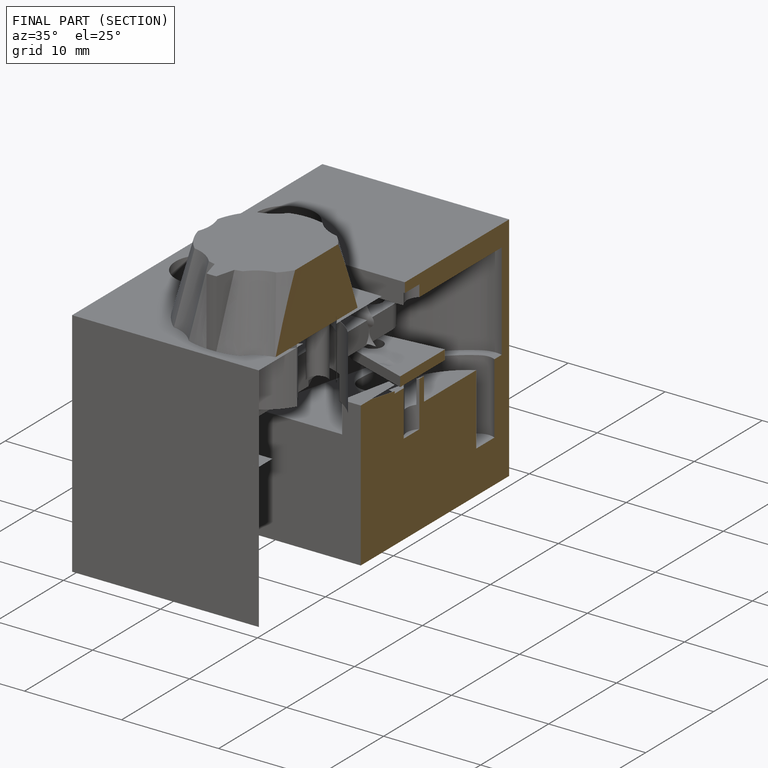
[diagram: finished part — half-section view (interior)]
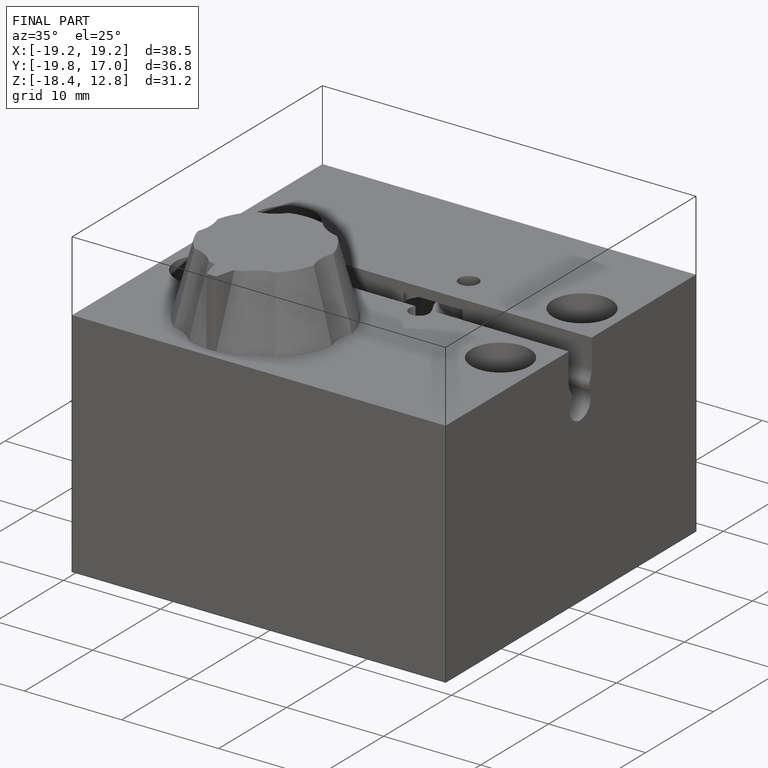
[diagram: finished part — iso view with bounding-box wireframe]
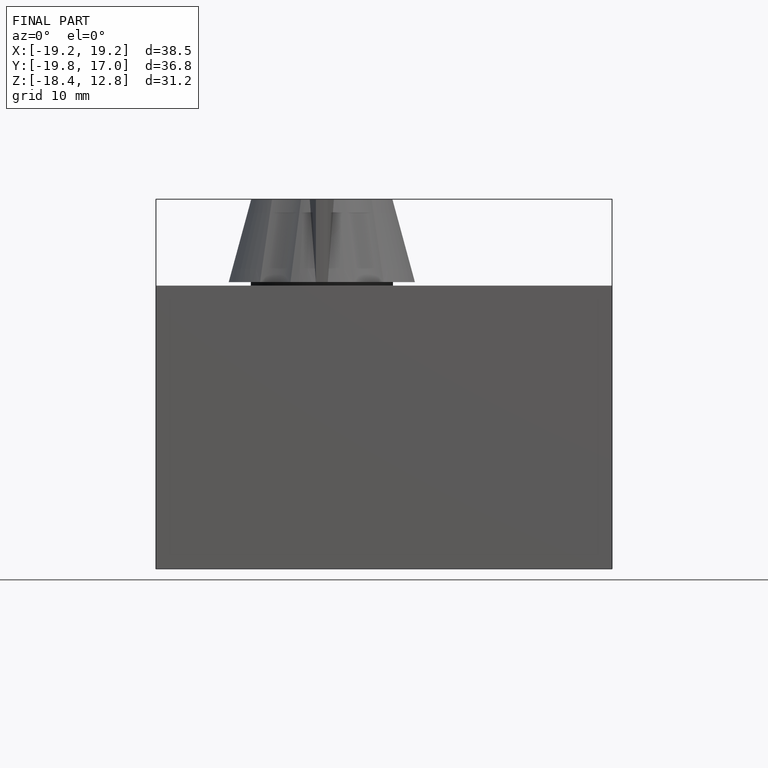
[diagram: finished part — front view with bounding-box wireframe]
